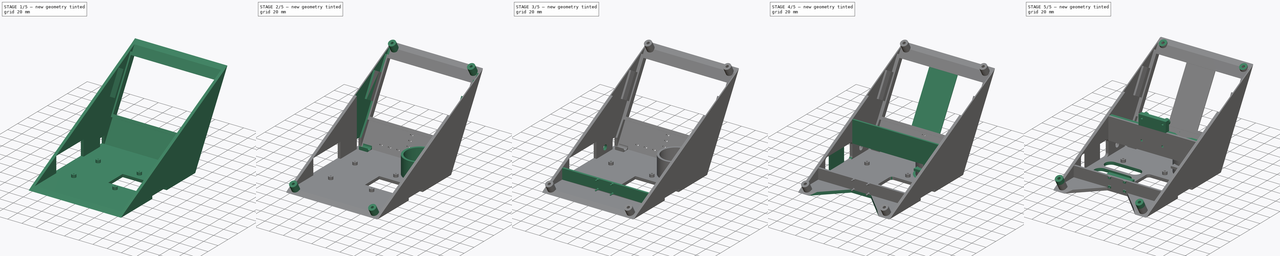
[diagram: build sequence overview — one tinted view per stage of 5, left to right]
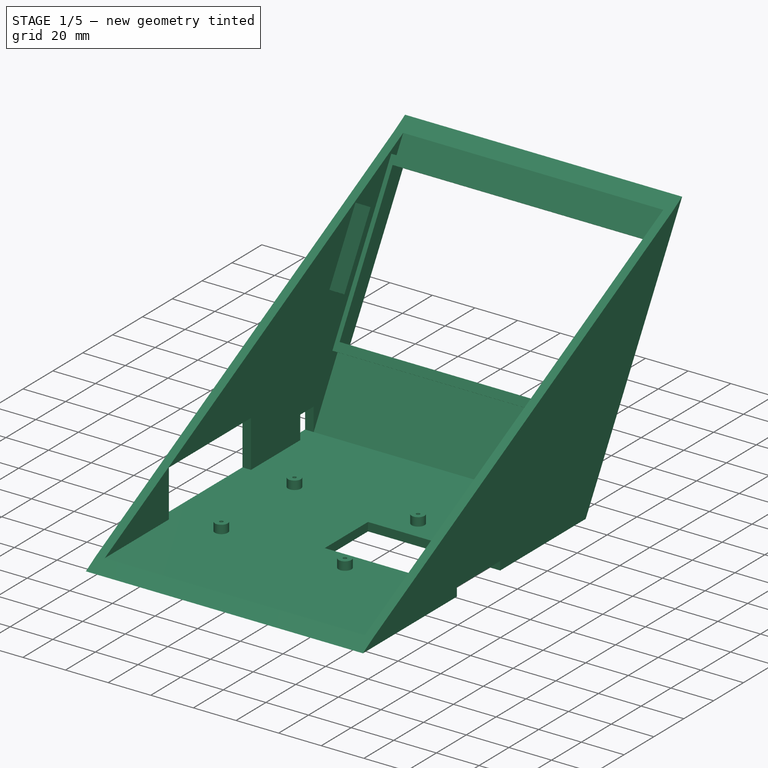
[diagram: stage 1 of 5 — iso view after this stage's code; geometry added in this stage tinted green]
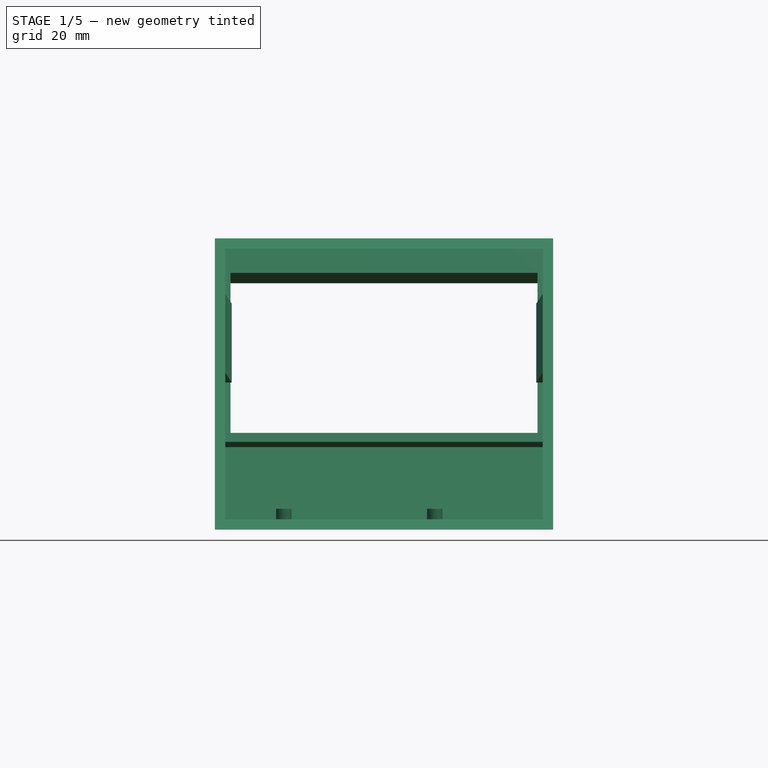
[diagram: stage 1 of 5 — front view after this stage's code; geometry added in this stage tinted green]
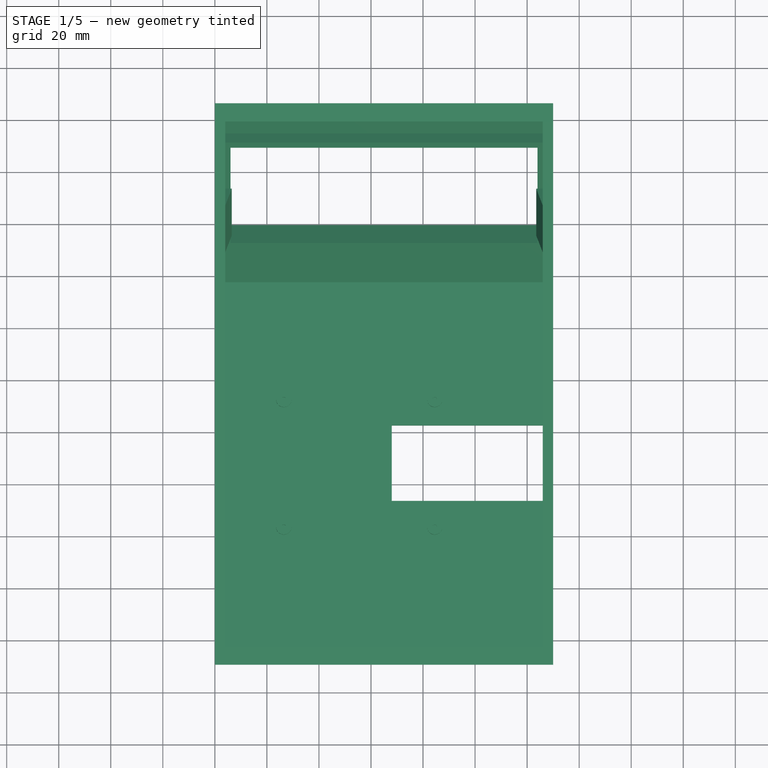
[diagram: stage 1 of 5 — top view after this stage's code; geometry added in this stage tinted green]
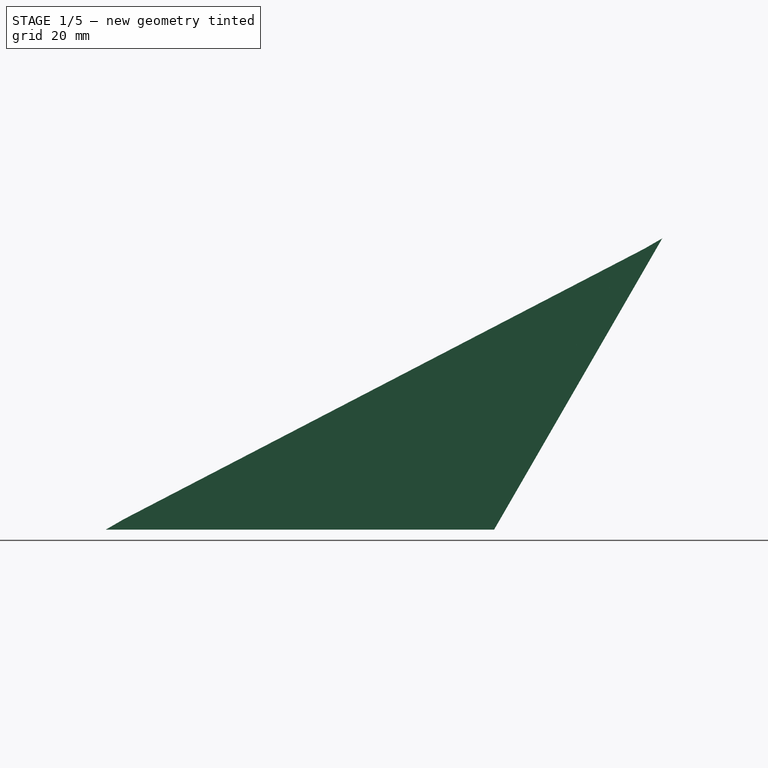
[diagram: stage 1 of 5 — right view after this stage's code; geometry added in this stage tinted green]
FCSTD DOCUMENT  (FreeCAD 0.17R8469 (Git))
Label: DAPrototypeV5
License: All rights reserved
LicenseURL: http://en.wikipedia.org/wiki/All_rights_reserved
objects: Sketcher::SketchObject×57, PartDesign::Pocket×29, PartDesign::Pad×28, PartDesign::Fillet×6
note: 177 computed .brp shape members not serialized (recipe doc carries the construction recipe); baked Part::Feature solids carry a one-line shape summary decoded from their .brp

FEATURE [Sketcher::SketchObject] Sketch
  MapMode = 5
  Placement = pos=(0,0,0) rot=(0.57735,0.57735,0.57735;2.0944rad)
  sketch-geometry (8):
    g0: LineSegment StartX=0 StartY=0 StartZ=0 EndX=64.6188 EndY=111.923 EndZ=0
    g1: LineSegment StartX=57.6906 StartY=107.923 StartZ=0 EndX=-2.3094 EndY=4 EndZ=0
    g2: LineSegment StartX=0 StartY=0 StartZ=0 EndX=-149.238 EndY=0 EndZ=0
    g3: LineSegment StartX=-2.3094 StartY=4 StartZ=0 EndX=-142.309 EndY=4 EndZ=0
    g4: LineSegment StartX=-149.238 StartY=0 StartZ=0 EndX=-142.309 EndY=4 EndZ=0
    g5: LineSegment StartX=57.6906 StartY=107.923 StartZ=0 EndX=64.6188 EndY=111.923 EndZ=0
    g6: LineSegment [constr] StartX=-2.3094 StartY=4 StartZ=0 EndX=-2.3094 EndY=0 EndZ=0
    g7: LineSegment [constr] StartX=-2.3094 StartY=4 StartZ=0 EndX=1.1547 EndY=2 EndZ=0
  constraints (23):
    c: Coincident(g0,g-1)
    c: Coincident(g2,g-1)
    c: Horizontal(g2)
    c: Horizontal(g3)
    c: Coincident(g4,g2)
    c: Coincident(g5,g1)
    c: Coincident(g5,g0)
    c: Parallel(g0,g1)
    c: Angle(g2,g4) = 0.523599
    c: Coincident(g3,g4)
    c: Coincident(g3,g1)
    c: Angle(g0,g2) = 2.0944
    c: PointOnObject(g6,g2)
    c: Vertical(g6)
    c: Distance(g6) = 4
    c: PointOnObject(g7,g0)
    c: Perpendicular(g0,g7)
    c: Parallel(g4,g5)
    c: Distance(g3) = 140
    c: Distance(g1) = 120
    c: Coincident(g7,g1)
    c: Coincident(g6,g1)
    c: Equal(g7,g6)
FEATURE [PartDesign::Pad] Pad
  Length = 130
  Length2 = 100
  Placement = pos=(0,0,0) rot=(0.57735,0.57735,0.57735;2.0944rad)
  Profile = -> Sketch
  Type = 0
FEATURE [Sketcher::SketchObject] Sketch001
  ExternalGeometry = -> [Pad]
  MapMode = 5
  Placement = pos=(0,-3.4641,2) rot=(0.447214,0.447214,-0.774597;1.82348rad)
  Support = -> [Pad]
  sketch-geometry (7):
    g0: LineSegment StartX=-109.309 StartY=124 StartZ=0 EndX=-38.3094 EndY=124 EndZ=0
    g1: LineSegment StartX=-38.3094 StartY=124 StartZ=0 EndX=-38.3094 EndY=6 EndZ=0
    g2: LineSegment StartX=-38.3094 StartY=6 StartZ=0 EndX=-109.309 EndY=6 EndZ=0
    g3: LineSegment StartX=-109.309 StartY=6 StartZ=0 EndX=-109.309 EndY=124 EndZ=0
    g4: LineSegment [constr] StartX=-109.309 StartY=124 StartZ=0 EndX=-109.309 EndY=130 EndZ=0
    g5: LineSegment [constr] StartX=-38.3094 StartY=6 StartZ=0 EndX=-38.3094 EndY=0 EndZ=0
    g6: LineSegment [constr] StartX=-38.3094 StartY=124 StartZ=0 EndX=-2.3094 EndY=124 EndZ=0
  constraints (21):
    c: Coincident(g0,g1)
    c: Coincident(g1,g2)
    c: Coincident(g2,g3)
    c: Coincident(g3,g0)
    c: Horizontal(g0)
    c: Horizontal(g2)
    c: Vertical(g1)
    c: Vertical(g3)
    c: Coincident(g4,g0)
    c: PointOnObject(g4,g-3)
    c: Vertical(g4)
    c: Coincident(g5,g1)
    c: PointOnObject(g5,g-6)
    c: Coincident(g6,g0)
    c: PointOnObject(g6,g-4)
    c: Horizontal(g6)
    c: Equal(g5,g4)
    c: Distance(g1) = 118
    c: Distance(g0) = 71
    c: Vertical(g5)
    c: Distance(g6) = 36
FEATURE [PartDesign::Pocket] Pocket
  Length = 5
  Placement = pos=(0,0,0) rot=(0.57735,0.57735,0.57735;2.0944rad)
  Profile = -> Sketch001
  Type = 2
FEATURE [Sketcher::SketchObject] Sketch002
  ExternalGeometry = -> [Pocket]
  MapMode = 5
  Placement = pos=(0,0,4) rot=(0,0,-1;1.5708rad)
  Support = -> [Pocket]
  sketch-geometry (14):
    g0: LineSegment [constr] StartX=47.3094 StartY=84.5 StartZ=0 EndX=96.3094 EndY=84.5 EndZ=0
    g1: LineSegment [constr] StartX=96.3094 StartY=84.5 StartZ=0 EndX=96.3094 EndY=26.5 EndZ=0
    g2: LineSegment [constr] StartX=96.3094 StartY=26.5 StartZ=0 EndX=47.3094 EndY=26.5 EndZ=0
    g3: LineSegment [constr] StartX=47.3094 StartY=26.5 StartZ=0 EndX=47.3094 EndY=84.5 EndZ=0
    g4: LineSegment [constr] StartX=47.3094 StartY=84.5 StartZ=0 EndX=2.3094 EndY=84.5 EndZ=0
    g5: LineSegment [constr] StartX=96.3094 StartY=26.5 StartZ=0 EndX=96.3094 EndY=0 EndZ=0
    g6: Circle CenterX=47.3094 CenterY=84.5 CenterZ=0 NormalX=0 NormalY=0 NormalZ=1 Radius=0.85
    g7: Circle CenterX=96.3094 CenterY=84.5 CenterZ=0 NormalX=0 NormalY=0 NormalZ=1 Radius=0.85
    g8: Circle CenterX=96.3094 CenterY=26.5 CenterZ=0 NormalX=0 NormalY=0 NormalZ=1 Radius=0.85
    g9: Circle CenterX=47.3094 CenterY=26.5 CenterZ=0 NormalX=0 NormalY=0 NormalZ=1 Radius=0.85
    g10: Circle CenterX=47.3094 CenterY=84.5 CenterZ=0 NormalX=0 NormalY=0 NormalZ=1 Radius=3
    g11: Circle CenterX=96.3094 CenterY=84.5 CenterZ=0 NormalX=0 NormalY=0 NormalZ=1 Radius=3
    g12: Circle CenterX=96.3094 CenterY=26.5 CenterZ=0 NormalX=0 NormalY=0 NormalZ=1 Radius=3
    g13: Circle CenterX=47.3094 CenterY=26.5 CenterZ=0 NormalX=0 NormalY=0 NormalZ=1 Radius=3
  constraints (34):
    c: Coincident(g0,g1)
    c: Coincident(g1,g2)
    c: Coincident(g2,g3)
    c: Coincident(g3,g0)
    c: Horizontal(g0)
    c: Horizontal(g2)
    c: Vertical(g1)
    c: Vertical(g3)
    c: Coincident(g4,g0)
    c: PointOnObject(g4,g-5)
    c: Perpendicular(g3,g4)
    c: Distance(g4) = 45
    c: Distance(g3) = 58
    c: Distance(g2) = 49
    c: Coincident(g5,g1)
    c: PointOnObject(g5,g-4)
    c: Perpendicular(g-4,g5)
    c: Distance(g5) = 26.5
    c: Equal(g6,g7)
    c: Equal(g7,g8)
    c: Equal(g8,g9)
    c: Radius(g6) = 0.85
    c: Coincident(g0,g6)
    c: Coincident(g0,g7)
    c: Coincident(g8,g1)
    c: Coincident(g9,g2)
    c: Equal(g10,g11)
    c: Equal(g11,g12)
    c: Equal(g12,g13)
    c: Radius(g10) = 3
    c: Coincident(g10,g0)
    c: Coincident(g0,g11)
    c: Coincident(g1,g12)
    c: Coincident(g2,g13)
FEATURE [PartDesign::Pad] Pad001
  Length = 4
  Length2 = 100
  Placement = pos=(0,0,0) rot=(0.57735,0.57735,0.57735;2.0944rad)
  Profile = -> Sketch002
  Type = 0
FEATURE [Sketcher::SketchObject] Sketch003
  ExternalGeometry = -> [Pad001]
  MapMode = 5
  Placement = pos=(0,-3.4641,2) rot=(0.447214,0.447214,-0.774597;1.82348rad)
  Support = -> [Pad001]
  sketch-geometry (12):
    g0: LineSegment StartX=-113.309 StartY=128 StartZ=0 EndX=-34.3094 EndY=128 EndZ=0
    g1: LineSegment StartX=-34.3094 StartY=128 StartZ=0 EndX=-34.3094 EndY=2 EndZ=0
    g2: LineSegment StartX=-34.3094 StartY=2 StartZ=0 EndX=-113.309 EndY=2 EndZ=0
    g3: LineSegment StartX=-113.309 StartY=2 StartZ=0 EndX=-113.309 EndY=128 EndZ=0
    g4: LineSegment [constr] StartX=-109.309 StartY=124 StartZ=0 EndX=-113.309 EndY=124 EndZ=0
    g5: LineSegment [constr] StartX=-38.3094 StartY=6 StartZ=0 EndX=-34.3094 EndY=6 EndZ=0
    g6: LineSegment [constr] StartX=-109.309 StartY=6 StartZ=0 EndX=-109.309 EndY=2 EndZ=0
    g7: LineSegment [constr] StartX=-38.3094 StartY=124 StartZ=0 EndX=-38.3094 EndY=128 EndZ=0
    g8: LineSegment StartX=-109.309 StartY=6 StartZ=0 EndX=-38.3094 EndY=6 EndZ=0
    g9: LineSegment StartX=-38.3094 StartY=6 StartZ=0 EndX=-38.3094 EndY=124 EndZ=0
    g10: LineSegment StartX=-38.3094 StartY=124 StartZ=0 EndX=-109.309 EndY=124 EndZ=0
    g11: LineSegment StartX=-109.309 StartY=124 StartZ=0 EndX=-109.309 EndY=6 EndZ=0
  constraints (34):
    c: Coincident(g0,g1)
    c: Coincident(g1,g2)
    c: Coincident(g2,g3)
    c: Coincident(g3,g0)
    c: Horizontal(g0)
    c: Horizontal(g2)
    c: Vertical(g1)
    c: Vertical(g3)
    c: Coincident(g4,g-5)
    c: PointOnObject(g4,g3)
    c: PointOnObject(g5,g1)
    c: Coincident(g6,g-6)
    c: PointOnObject(g6,g2)
    c: PointOnObject(g7,g0)
    c: Equal(g4,g6)
    c: Equal(g6,g5)
    c: Equal(g5,g7)
    c: Perpendicular(g3,g4)
    c: Perpendicular(g0,g7)
    c: Perpendicular(g1,g5)
    c: Perpendicular(g2,g6)
    c: Coincident(g5,g-6)
    c: Coincident(g7,g-4)
    c: Distance(g4) = 4
    c: Coincident(g8,g9)
    c: Coincident(g9,g10)
    c: Coincident(g10,g11)
    c: Coincident(g11,g8)
    c: Horizontal(g8)
    c: Horizontal(g10)
    c: Vertical(g9)
    c: Vertical(g11)
    c: Coincident(g9,g7)
    c: Coincident(g8,g6)
FEATURE [PartDesign::Pad] Pad002
  Length = 4
  Length2 = 100
  Placement = pos=(0,0,0) rot=(0.57735,0.57735,0.57735;2.0944rad)
  Profile = -> Sketch003
  Type = 0
FEATURE [Sketcher::SketchObject] Sketch004
  ExternalGeometry = -> [Pad002]
  MapMode = 5
  Placement = pos=(0,0,4) rot=(0,0,-1;1.5708rad)
  Support = -> [Pad002]
  sketch-geometry (10):
    g0: LineSegment StartX=57.3094 StartY=68 StartZ=0 EndX=86.3094 EndY=68 EndZ=0
    g1: LineSegment StartX=86.3094 StartY=68 StartZ=0 EndX=86.3094 EndY=130 EndZ=0
    g2: LineSegment StartX=86.3094 StartY=130 StartZ=0 EndX=57.3094 EndY=130 EndZ=0
    g3: LineSegment StartX=57.3094 StartY=130 StartZ=0 EndX=57.3094 EndY=68 EndZ=0
    g4: LineSegment [constr] StartX=47.3094 StartY=83 StartZ=0 EndX=96.3094 EndY=83 EndZ=0
    g5: LineSegment [constr] StartX=96.3094 StartY=83 StartZ=0 EndX=96.3094 EndY=68 EndZ=0
    g6: LineSegment [constr] StartX=96.3094 StartY=68 StartZ=0 EndX=47.3094 EndY=68 EndZ=0
    g7: LineSegment [constr] StartX=47.3094 StartY=68 StartZ=0 EndX=47.3094 EndY=83 EndZ=0
    g8: LineSegment [constr] StartX=57.3094 StartY=83 StartZ=0 EndX=47.3094 EndY=83 EndZ=0
    g9: LineSegment [constr] StartX=86.3094 StartY=83 StartZ=0 EndX=96.3094 EndY=83 EndZ=0
  constraints (29):
    c: Coincident(g0,g1)
    c: Coincident(g1,g2)
    c: Coincident(g2,g3)
    c: Coincident(g3,g0)
    c: Horizontal(g0)
    c: Horizontal(g2)
    c: Vertical(g1)
    c: Vertical(g3)
    c: PointOnObject(g2,g-3)
    c: Coincident(g4,g5)
    c: Coincident(g5,g6)
    c: Coincident(g6,g7)
    c: Coincident(g7,g4)
    c: Horizontal(g4)
    c: Horizontal(g6)
    c: Vertical(g5)
    c: Vertical(g7)
    c: Coincident(g4,g-5)
    c: Coincident(g4,g-4)
    c: Distance(g5) = 15
    c: PointOnObject(g0,g6)
    c: PointOnObject(g8,g3)
    c: Coincident(g8,g4)
    c: Coincident(g9,g4)
    c: PointOnObject(g9,g1)
    c: Equal(g8,g9)
    c: Distance(g8) = 10
    c: Perpendicular(g3,g8)
    c: Perpendicular(g1,g9)
FEATURE [PartDesign::Pocket] Pocket001
  Length = 5
  Placement = pos=(0,0,0) rot=(0.57735,0.57735,0.57735;2.0944rad)
  Profile = -> Sketch004
  Type = 2
FEATURE [Sketcher::SketchObject] Sketch005
  ExternalGeometry = -> [Pocket001]
  MapMode = 5
  Placement = pos=(0,-6.9282,4) rot=(0.447214,0.447214,-0.774597;1.82348rad)
  Support = -> [Pocket001]
  sketch-geometry (12):
    g0: LineSegment StartX=-91.3094 StartY=128 StartZ=0 EndX=-56.3094 EndY=128 EndZ=0
    g1: LineSegment StartX=-56.3094 StartY=128 StartZ=0 EndX=-56.3094 EndY=126 EndZ=0
    g2: LineSegment StartX=-56.3094 StartY=126 StartZ=0 EndX=-91.3094 EndY=126 EndZ=0
    g3: LineSegment StartX=-91.3094 StartY=126 StartZ=0 EndX=-91.3094 EndY=128 EndZ=0
    g4: LineSegment StartX=-91.3094 StartY=2 StartZ=0 EndX=-56.3094 EndY=2 EndZ=0
    g5: LineSegment StartX=-56.3094 StartY=2 StartZ=0 EndX=-56.3094 EndY=4 EndZ=0
    g6: LineSegment StartX=-56.3094 StartY=4 StartZ=0 EndX=-91.3094 EndY=4 EndZ=0
    g7: LineSegment StartX=-91.3094 StartY=4 StartZ=0 EndX=-91.3094 EndY=2 EndZ=0
    g8: LineSegment [constr] StartX=-113.309 StartY=126 StartZ=0 EndX=-91.3094 EndY=126 EndZ=0
    g9: LineSegment [constr] StartX=-56.3094 StartY=126 StartZ=0 EndX=-34.3094 EndY=126 EndZ=0
    g10: LineSegment [constr] StartX=-56.3094 StartY=4 StartZ=0 EndX=-34.3094 EndY=4 EndZ=0
    g11: LineSegment [constr] StartX=-91.3094 StartY=4 StartZ=0 EndX=-113.309 EndY=4 EndZ=0
  constraints (36):
    c: Coincident(g0,g1)
    c: Coincident(g1,g2)
    c: Coincident(g2,g3)
    c: Coincident(g3,g0)
    c: Horizontal(g0)
    c: Horizontal(g2)
    c: Vertical(g1)
    c: Vertical(g3)
    c: PointOnObject(g0,g-8)
    c: Coincident(g4,g5)
    c: Coincident(g5,g6)
    c: Coincident(g6,g7)
    c: Coincident(g7,g4)
    c: Horizontal(g4)
    c: Horizontal(g6)
    c: Vertical(g5)
    c: Vertical(g7)
    c: PointOnObject(g4,g-7)
    c: Equal(g6,g2)
    c: Equal(g1,g5)
    c: PointOnObject(g8,g-10)
    c: Coincident(g8,g2)
    c: Horizontal(g8)
    c: Coincident(g9,g1)
    c: PointOnObject(g9,g-9)
    c: Horizontal(g9)
    c: Coincident(g10,g5)
    c: PointOnObject(g10,g-9)
    c: Horizontal(g10)
    c: Coincident(g11,g6)
    c: Horizontal(g11)
    c: Equal(g11,g10)
    c: Equal(g9,g8)
    c: Distance(g1) = 2
    c: Distance(g2) = 35
    c: PointOnObject(g11,g-10)
FEATURE [PartDesign::Pad] Pad003
  Length = 15
  Length2 = 100
  Placement = pos=(0,0,0) rot=(0.57735,0.57735,0.57735;2.0944rad)
  Profile = -> Sketch005
  Type = 0
FEATURE [Sketcher::SketchObject] Sketch006
  ExternalGeometry = -> [Pad003]
  MapMode = 5
  Placement = pos=(0,45.6547,79.0763) rot=(-0.250563,-0.250563,-0.935113;1.63783rad)
  Support = -> [Pad003]
  sketch-geometry (3):
    g0: LineSegment StartX=23 StartY=126 StartZ=0 EndX=15.5 EndY=126 EndZ=0
    g1: LineSegment StartX=15.5 StartY=126 StartZ=0 EndX=15.5 EndY=123.5 EndZ=0
    g2: LineSegment StartX=23 StartY=126 StartZ=0 EndX=15.5 EndY=123.5 EndZ=0
  constraints (8):
    c: Coincident(g0,g1)
    c: Horizontal(g0)
    c: Vertical(g1)
    c: Coincident(g0,g-3)
    c: Distance(g1) = 2.5
    c: Coincident(g2,g0)
    c: Coincident(g2,g1)
    c: DistanceX(g0,g0) = 7.5
FEATURE [PartDesign::Pad] Pad004
  Length = 35
  Length2 = 100
  Placement = pos=(0,0,0) rot=(0.57735,0.57735,0.57735;2.0944rad)
  Profile = -> Sketch006
  Reversed = true
  Type = 0
FEATURE [Sketcher::SketchObject] Sketch007
  ExternalGeometry = -> [Pad004]
  MapMode = 5
  Placement = pos=(0,45.6547,79.0763) rot=(-0.250563,-0.250563,-0.935113;1.63783rad)
  Support = -> [Pad004]
  sketch-geometry (3):
    g0: LineSegment StartX=23 StartY=4 StartZ=0 EndX=15.5 EndY=4 EndZ=0
    g1: LineSegment StartX=15.5 StartY=4 StartZ=0 EndX=15.5 EndY=6.5 EndZ=0
    g2: LineSegment StartX=15.5 StartY=6.5 StartZ=0 EndX=23 EndY=4 EndZ=0
  constraints (8):
    c: Coincident(g0,g1)
    c: Horizontal(g0)
    c: Vertical(g1)
    c: Coincident(g0,g-3)
    c: Distance(g1) = 2.5
    c: Coincident(g2,g1)
    c: Coincident(g2,g0)
    c: DistanceX(g0,g0) = 7.5
FEATURE [PartDesign::Pad] Pad005
  Length = 35
  Length2 = 100
  Placement = pos=(0,0,0) rot=(0.57735,0.57735,0.57735;2.0944rad)
  Profile = -> Sketch007
  Reversed = true
  Type = 0
FEATURE [Sketcher::SketchObject] Sketch008
  ExternalGeometry = -> [Pad005]
  MapMode = 5
  Placement = pos=(0,0,0) rot=(0.57735,0.57735,-0.57735;4.18879rad)
  Support = -> [Pad005]
  sketch-geometry (3):
    g0: LineSegment StartX=-2.3094 StartY=-4 StartZ=0 EndX=57.6906 EndY=-107.923 EndZ=0
    g1: LineSegment StartX=57.6906 StartY=-107.923 StartZ=0 EndX=-142.309 EndY=-4 EndZ=0
    g2: LineSegment StartX=-142.309 StartY=-4 StartZ=0 EndX=-2.3094 EndY=-4 EndZ=0
  constraints (7):
    c: Coincident(g0,g-4)
    c: Coincident(g0,g-4)
    c: Coincident(g1,g0)
    c: Coincident(g2,g1)
    c: Coincident(g2,g0)
    c: Horizontal(g2)
    c: Coincident(g1,g-3)
FEATURE [PartDesign::Pad] Pad006
  Length = 4
  Length2 = 100
  Placement = pos=(0,0,0) rot=(0.57735,0.57735,0.57735;2.0944rad)
  Profile = -> Sketch008
  Reversed = true
  Type = 0
FEATURE [Sketcher::SketchObject] Sketch009
  ExternalGeometry = -> [Pad006]
  MapMode = 5
  Placement = pos=(130,0,0) rot=(0.57735,0.57735,0.57735;2.0944rad)
  Support = -> [Pad006]
  sketch-geometry (3):
    g0: LineSegment StartX=-142.309 StartY=4 StartZ=0 EndX=-2.3094 EndY=4 EndZ=0
    g1: LineSegment StartX=-2.3094 StartY=4 StartZ=0 EndX=57.6906 EndY=107.923 EndZ=0
    g2: LineSegment StartX=57.6906 StartY=107.923 StartZ=0 EndX=-142.309 EndY=4 EndZ=0
  constraints (6):
    c: Coincident(g0,g-3)
    c: Coincident(g0,g-4)
    c: Coincident(g1,g0)
    c: Coincident(g1,g-4)
    c: Coincident(g2,g1)
    c: Coincident(g2,g0)
FEATURE [PartDesign::Pad] Pad007
  Length = 4
  Length2 = 100
  Placement = pos=(0,0,0) rot=(0.57735,0.57735,0.57735;2.0944rad)
  Profile = -> Sketch009
  Reversed = true
  Type = 0
FEATURE [Sketcher::SketchObject] Sketch010
  ExternalGeometry = -> [Pad007]
  MapMode = 5
  Placement = pos=(0,0,4) rot=(0,0,-1;1.5708rad)
  Support = -> [Pad007]
  sketch-geometry (6):
    g0: LineSegment [constr] StartX=44.3094 StartY=26.5 StartZ=0 EndX=44.3094 EndY=0 EndZ=0
    g1: LineSegment [constr] StartX=99.3094 StartY=26.5 StartZ=0 EndX=99.3094 EndY=0 EndZ=0
    g2: LineSegment StartX=44.3094 StartY=0 StartZ=0 EndX=99.3094 EndY=0 EndZ=0
    g3: LineSegment StartX=99.3094 StartY=0 StartZ=0 EndX=99.3094 EndY=16.5 EndZ=0
    g4: LineSegment StartX=99.3094 StartY=16.5 StartZ=0 EndX=44.3094 EndY=16.5 EndZ=0
    g5: LineSegment StartX=44.3094 StartY=16.5 StartZ=0 EndX=44.3094 EndY=0 EndZ=0
  constraints (19):
    c: PointOnObject(g0,g-5)
    c: PointOnObject(g1,g-4)
    c: Tangent(g0,g-5)
    c: Tangent(g1,g-4)
    c: Vertical(g1)
    c: Vertical(g0)
    c: PointOnObject(g0,g-3)
    c: PointOnObject(g1,g-3)
    c: Coincident(g2,g3)
    c: Coincident(g3,g4)
    c: Coincident(g4,g5)
    c: Coincident(g5,g2)
    c: Horizontal(g2)
    c: Horizontal(g4)
    c: Vertical(g3)
    c: Vertical(g5)
    c: Coincident(g2,g0)
    c: PointOnObject(g3,g1)
    c: DistanceY(g4,g0) = 10
FEATURE [PartDesign::Pocket] Pocket002
  Length = 22
  Placement = pos=(0,0,0) rot=(0.57735,0.57735,0.57735;2.0944rad)
  Profile = -> Sketch010
  Reversed = true
  Type = 0
FEATURE [Sketcher::SketchObject] Sketch011
  ExternalGeometry = -> [Pocket002]
  MapMode = 5
  Placement = pos=(0,0,0) rot=(0.57735,0.57735,-0.57735;4.18879rad)
  Support = -> [Pocket002]
  sketch-geometry (4):
    g0: LineSegment StartX=-2.3094 StartY=-4 StartZ=0 EndX=-11.3094 EndY=-4 EndZ=0
    g1: LineSegment StartX=-11.3094 StartY=-4 StartZ=0 EndX=-11.3094 EndY=-14.8 EndZ=0
    g2: LineSegment StartX=-11.3094 StartY=-14.8 StartZ=0 EndX=-2.3094 EndY=-14.8 EndZ=0
    g3: LineSegment StartX=-2.3094 StartY=-14.8 StartZ=0 EndX=-2.3094 EndY=-4 EndZ=0
  constraints (11):
    c: Coincident(g0,g1)
    c: Coincident(g1,g2)
    c: Coincident(g2,g3)
    c: Coincident(g3,g0)
    c: Horizontal(g0)
    c: Horizontal(g2)
    c: Vertical(g1)
    c: Vertical(g3)
    c: Coincident(g0,g-4)
    c: Distance(g1) = 10.8
    c: Distance(g2) = 9
FEATURE [PartDesign::Pocket] Pocket003
  Length = 5
  Placement = pos=(0,0,0) rot=(0.57735,0.57735,0.57735;2.0944rad)
  Profile = -> Sketch011
  Type = 2
FEATURE [Sketcher::SketchObject] Sketch012
  ExternalGeometry = -> [Pocket003]
  MapMode = 5
  Placement = pos=(0,0,0) rot=(0.654654,0.654654,0.377964;3.86433rad)
  Support = -> [Pocket003]
  sketch-geometry (63):
    g0: LineSegment [constr] StartX=0 StartY=0 StartZ=0 EndX=10.3094 EndY=0 EndZ=0
    g1: LineSegment [constr] StartX=10.3094 StartY=0 StartZ=0 EndX=10.3094 EndY=29 EndZ=0
    g2: LineSegment [constr] StartX=10.3094 StartY=29 StartZ=0 EndX=0 EndY=29 EndZ=0
    g3: LineSegment [constr] StartX=0 StartY=29 StartZ=0 EndX=0 EndY=0 EndZ=0
    g4: LineSegment [constr] StartX=0 StartY=29 StartZ=0 EndX=10.3094 EndY=29 EndZ=0
    g5: LineSegment [constr] StartX=10.3094 StartY=29 StartZ=0 EndX=10.3094 EndY=41 EndZ=0
    g6: LineSegment [constr] StartX=10.3094 StartY=41 StartZ=0 EndX=0 EndY=41 EndZ=0
    g7: LineSegment [constr] StartX=0 StartY=41 StartZ=0 EndX=0 EndY=29 EndZ=0
    g8: LineSegment [constr] StartX=0 StartY=41 StartZ=0 EndX=10.3094 EndY=41 EndZ=0
    g9: LineSegment [constr] StartX=10.3094 StartY=41 StartZ=0 EndX=10.3094 EndY=53 EndZ=0
    g10: LineSegment [constr] StartX=10.3094 StartY=53 StartZ=0 EndX=0 EndY=53 EndZ=0
    g11: LineSegment [constr] StartX=0 StartY=53 StartZ=0 EndX=0 EndY=41 EndZ=0
    g12: LineSegment [constr] StartX=0 StartY=53 StartZ=0 EndX=10.3094 EndY=53 EndZ=0
    g13: LineSegment [constr] StartX=10.3094 StartY=53 StartZ=0 EndX=10.3094 EndY=65 EndZ=0
    g14: LineSegment [constr] StartX=10.3094 StartY=65 StartZ=0 EndX=0 EndY=65 EndZ=0
    g15: LineSegment [constr] StartX=0 StartY=65 StartZ=0 EndX=0 EndY=53 EndZ=0
    g16: LineSegment [constr] StartX=0 StartY=65 StartZ=0 EndX=10.3094 EndY=65 EndZ=0
    g17: LineSegment [constr] StartX=10.3094 StartY=65 StartZ=0 EndX=10.3094 EndY=77 EndZ=0
    g18: LineSegment [constr] StartX=10.3094 StartY=77 StartZ=0 EndX=0 EndY=77 EndZ=0
    g19: LineSegment [constr] StartX=0 StartY=77 StartZ=0 EndX=0 EndY=65 EndZ=0
    g20: LineSegment [constr] StartX=0 StartY=77 StartZ=0 EndX=10.3094 EndY=77 EndZ=0
    g21: LineSegment [constr] StartX=10.3094 StartY=77 StartZ=0 EndX=10.3094 EndY=89 EndZ=0
    g22: LineSegment [constr] StartX=10.3094 StartY=89 StartZ=0 EndX=0 EndY=89 EndZ=0
    g23: LineSegment [constr] StartX=0 StartY=89 StartZ=0 EndX=0 EndY=77 EndZ=0
    g24: LineSegment [constr] StartX=0 StartY=89 StartZ=0 EndX=10.3094 EndY=89 EndZ=0
    g25: LineSegment [constr] StartX=10.3094 StartY=89 StartZ=0 EndX=10.3094 EndY=101 EndZ=0
    g26: LineSegment [constr] StartX=10.3094 StartY=101 StartZ=0 EndX=0 EndY=101 EndZ=0
    g27: LineSegment [constr] StartX=0 StartY=101 StartZ=0 EndX=0 EndY=89 EndZ=0
    g28: LineSegment [constr] StartX=0 StartY=101 StartZ=0 EndX=10.3094 EndY=101 EndZ=0
    g29: LineSegment [constr] StartX=10.3094 StartY=101 StartZ=0 EndX=10.3094 EndY=130 EndZ=0
    g30: LineSegment [constr] StartX=10.3094 StartY=130 StartZ=0 EndX=0 EndY=130 EndZ=0
    g31: LineSegment [constr] StartX=0 StartY=130 StartZ=0 EndX=0 EndY=101 EndZ=0
    g32: LineSegment [constr] StartX=10.3094 StartY=65 StartZ=0 EndX=17.3094 EndY=65 EndZ=0
    g33: LineSegment [constr] StartX=17.3094 StartY=65 StartZ=0 EndX=17.3094 EndY=53 EndZ=0
    g34: LineSegment [constr] StartX=17.3094 StartY=53 StartZ=0 EndX=10.3094 EndY=53 EndZ=0
    g35: LineSegment [constr] StartX=10.3094 StartY=53 StartZ=0 EndX=10.3094 EndY=65 EndZ=0
    g36: LineSegment [constr] StartX=17.3094 StartY=65 StartZ=0 EndX=24.3094 EndY=65 EndZ=0
    g37: LineSegment [constr] StartX=24.3094 StartY=65 StartZ=0 EndX=24.3094 EndY=53 EndZ=0
    g38: LineSegment [constr] StartX=24.3094 StartY=53 StartZ=0 EndX=17.3094 EndY=53 EndZ=0
    g39: LineSegment [constr] StartX=17.3094 StartY=53 StartZ=0 EndX=17.3094 EndY=65 EndZ=0
    g40: LineSegment [constr] StartX=24.3094 StartY=65 StartZ=0 EndX=31.3094 EndY=65 EndZ=0
    g41: LineSegment [constr] StartX=31.3094 StartY=65 StartZ=0 EndX=31.3094 EndY=53 EndZ=0
    g42: LineSegment [constr] StartX=31.3094 StartY=53 StartZ=0 EndX=24.3094 EndY=53 EndZ=0
    g43: LineSegment [constr] StartX=24.3094 StartY=53 StartZ=0 EndX=24.3094 EndY=65 EndZ=0
    g44: LineSegment [constr] StartX=31.3094 StartY=65 StartZ=0 EndX=38.3094 EndY=65 EndZ=0
    g45: LineSegment [constr] StartX=38.3094 StartY=65 StartZ=0 EndX=38.3094 EndY=53 EndZ=0
    g46: LineSegment [constr] StartX=38.3094 StartY=53 StartZ=0 EndX=31.3094 EndY=53 EndZ=0
    g47: LineSegment [constr] StartX=31.3094 StartY=53 StartZ=0 EndX=31.3094 EndY=65 EndZ=0
    g48: Circle CenterX=10.3094 CenterY=101 CenterZ=0 NormalX=0 NormalY=0 NormalZ=1 Radius=2.9
    g49: Circle CenterX=10.3094 CenterY=89 CenterZ=0 NormalX=0 NormalY=0 NormalZ=1 Radius=2.9
    g50: Circle CenterX=10.3094 CenterY=77 CenterZ=0 NormalX=0 NormalY=0 NormalZ=1 Radius=2.9
    g51: Circle CenterX=10.3094 CenterY=65 CenterZ=0 NormalX=0 NormalY=0 NormalZ=1 Radius=2.9
    g52: Circle CenterX=17.3094 CenterY=65 CenterZ=0 NormalX=0 NormalY=0 NormalZ=1 Radius=2.9
    g53: Circle CenterX=10.3094 CenterY=53 CenterZ=0 NormalX=0 NormalY=0 NormalZ=1 Radius=2.9
    g54: Circle CenterX=10.3094 CenterY=41 CenterZ=0 NormalX=0 NormalY=0 NormalZ=1 Radius=2.9
    g55: Circle CenterX=10.3094 CenterY=29 CenterZ=0 NormalX=0 NormalY=0 NormalZ=1 Radius=2.9
    g56: Circle CenterX=24.3094 CenterY=65 CenterZ=0 NormalX=0 NormalY=0 NormalZ=1 Radius=2.9
    g57: Circle CenterX=31.3094 CenterY=65 CenterZ=0 NormalX=0 NormalY=0 NormalZ=1 Radius=2.9
    g58: LineSegment [constr] StartX=38.3094 StartY=118 StartZ=0 EndX=30.3094 EndY=118 EndZ=0
    g59: LineSegment [constr] StartX=30.3094 StartY=118 StartZ=0 EndX=30.3094 EndY=130 EndZ=0
    g60: LineSegment [constr] StartX=30.3094 StartY=130 StartZ=0 EndX=38.3094 EndY=130 EndZ=0
    g61: LineSegment [constr] StartX=38.3094 StartY=130 StartZ=0 EndX=38.3094 EndY=118 EndZ=0
    g62: Circle CenterX=30.3094 CenterY=118 CenterZ=0 NormalX=0 NormalY=0 NormalZ=1 Radius=2.9
  constraints (166):
    c: Coincident(g0,g1)
    c: Coincident(g1,g2)
    c: Coincident(g2,g3)
    c: Coincident(g3,g0)
    c: Horizontal(g0)
    c: Horizontal(g2)
    c: Vertical(g1)
    c: Vertical(g3)
    c: Coincident(g0,g-1)
    c: Coincident(g4,g5)
    c: Coincident(g5,g6)
    c: Coincident(g6,g7)
    c: Coincident(g7,g4)
    c: Horizontal(g4)
    c: Horizontal(g6)
    c: Vertical(g5)
    c: Vertical(g7)
    c: Coincident(g4,g2)
    c: Coincident(g8,g9)
    c: Coincident(g9,g10)
    c: Coincident(g10,g11)
    c: Coincident(g11,g8)
    c: Horizontal(g8)
    c: Horizontal(g10)
    c: Vertical(g9)
    c: Vertical(g11)
    c: Coincident(g8,g6)
    c: Coincident(g12,g13)
    c: Coincident(g13,g14)
    c: Coincident(g14,g15)
    c: Coincident(g15,g12)
    c: Horizontal(g12)
    c: Horizontal(g14)
    c: Vertical(g13)
    c: Vertical(g15)
    c: Coincident(g12,g10)
    c: Coincident(g16,g17)
    c: Coincident(g17,g18)
    c: Coincident(g18,g19)
    c: Coincident(g19,g16)
    c: Horizontal(g16)
    c: Horizontal(g18)
    c: Vertical(g17)
    c: Vertical(g19)
    c: Coincident(g16,g14)
    c: Coincident(g20,g21)
    c: Coincident(g21,g22)
    c: Coincident(g22,g23)
    c: Coincident(g23,g20)
    c: Horizontal(g20)
    c: Horizontal(g22)
    c: Vertical(g21)
    c: Vertical(g23)
    c: Coincident(g20,g18)
    c: Coincident(g24,g25)
    c: Coincident(g25,g26)
    c: Coincident(g26,g27)
    c: Coincident(g27,g24)
    c: Horizontal(g24)
    c: Horizontal(g26)
    c: Vertical(g25)
    c: Vertical(g27)
    c: Coincident(g24,g22)
    c: Coincident(g28,g29)
    c: Coincident(g29,g30)
    c: Coincident(g30,g31)
    c: Coincident(g31,g28)
    c: Horizontal(g28)
    c: Horizontal(g30)
    c: Vertical(g29)
    c: Vertical(g31)
    c: Coincident(g28,g26)
    c: PointOnObject(g29,g-3)
    c: Equal(g25,g21)
    c: Equal(g21,g17)
    c: Equal(g17,g13)
    c: Equal(g13,g9)
    c: Equal(g9,g5)
    c: Coincident(g1,g4)
    c: Coincident(g5,g8)
    c: Coincident(g12,g9)
    c: Coincident(g16,g13)
    c: Coincident(g20,g17)
    c: Coincident(g24,g21)
    c: Coincident(g28,g25)
    c: Equal(g29,g1)
    c: Distance(g25) = 12
    c: Coincident(g32,g33)
    c: Coincident(g33,g34)
    c: Coincident(g34,g35)
    c: Coincident(g35,g32)
    c: Horizontal(g32)
    c: Horizontal(g34)
    c: Vertical(g33)
    c: Vertical(g35)
    c: Coincident(g32,g13)
    c: Coincident(g36,g37)
    c: Coincident(g37,g38)
    c: Coincident(g38,g39)
    c: Coincident(g39,g36)
    c: Horizontal(g36)
    c: Horizontal(g38)
    c: Vertical(g37)
    c: Vertical(g39)
    c: Coincident(g36,g32)
    c: Coincident(g40,g41)
    c: Coincident(g41,g42)
    c: Coincident(g42,g43)
    c: Coincident(g43,g40)
    c: Horizontal(g40)
    c: Horizontal(g42)
    c: Vertical(g41)
    c: Vertical(g43)
    c: Coincident(g40,g36)
    c: Coincident(g44,g45)
    c: Coincident(g45,g46)
    c: Coincident(g46,g47)
    c: Coincident(g47,g44)
    c: Horizontal(g44)
    c: Horizontal(g46)
    c: Vertical(g45)
    c: Vertical(g47)
    c: Coincident(g44,g40)
    c: PointOnObject(g45,g-5)
    c: Coincident(g46,g41)
    c: Coincident(g42,g37)
    c: Coincident(g38,g33)
    c: Equal(g34,g38)
    c: Equal(g38,g42)
    c: Equal(g42,g46)
    c: Distance(g44) = 7
    c: Coincident(g34,g9)
    c: Radius(g57) = 2.9
    c: Equal(g57,g56)
    c: Equal(g57,g55)
    c: Equal(g57,g54)
    c: Equal(g57,g53)
    c: Equal(g57,g52)
    c: Equal(g57,g51)
    c: Equal(g57,g50)
    c: Equal(g57,g49)
    c: Equal(g57,g48)
    c: Coincident(g48,g25)
    c: Coincident(g49,g21)
    c: Coincident(g50,g17)
    c: Coincident(g51,g13)
    c: Coincident(g52,g32)
    c: Coincident(g53,g9)
    c: Coincident(g54,g5)
    c: Coincident(g55,g1)
    c: Coincident(g56,g36)
    c: Coincident(g57,g40)
    c: Coincident(g58,g59)
    c: Coincident(g59,g60)
    c: Coincident(g60,g61)
    c: Coincident(g61,g58)
    c: Horizontal(g58)
    c: Horizontal(g60)
    c: Vertical(g59)
    c: Vertical(g61)
    c: PointOnObject(g58,g-5)
    c: PointOnObject(g59,g-3)
    c: Distance(g58) = 8
    c: Distance(g59) = 12
    c: Equal(g57,g62)
    c: Coincident(g62,g58)
FEATURE [PartDesign::Pocket] Pocket004
  Length = 3
  Placement = pos=(0,0,0) rot=(0.57735,0.57735,0.57735;2.0944rad)
  Profile = -> Sketch012
  Type = 0
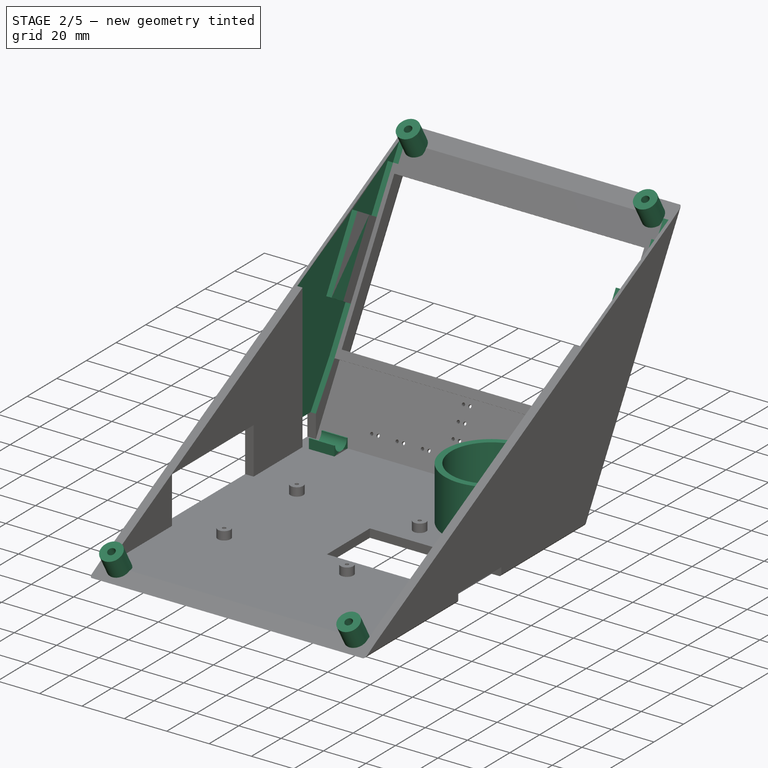
[diagram: stage 2 of 5 — iso view after this stage's code; geometry added in this stage tinted green]
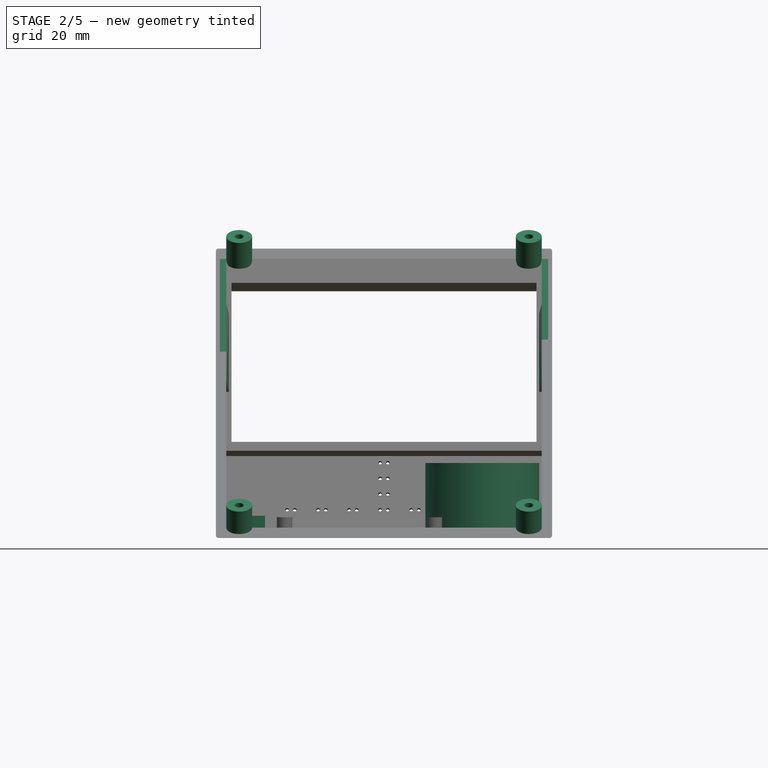
[diagram: stage 2 of 5 — front view after this stage's code; geometry added in this stage tinted green]
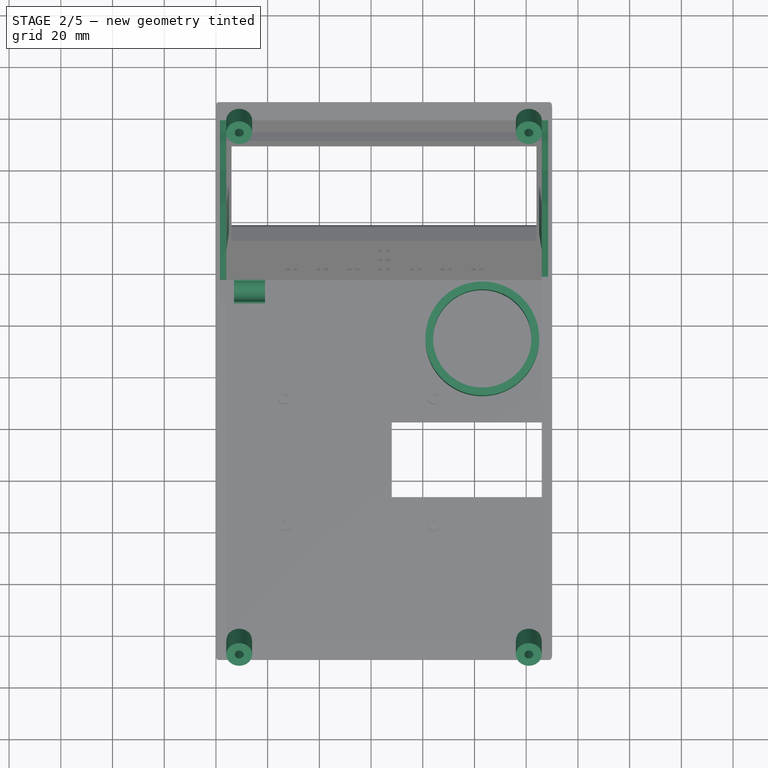
[diagram: stage 2 of 5 — top view after this stage's code; geometry added in this stage tinted green]
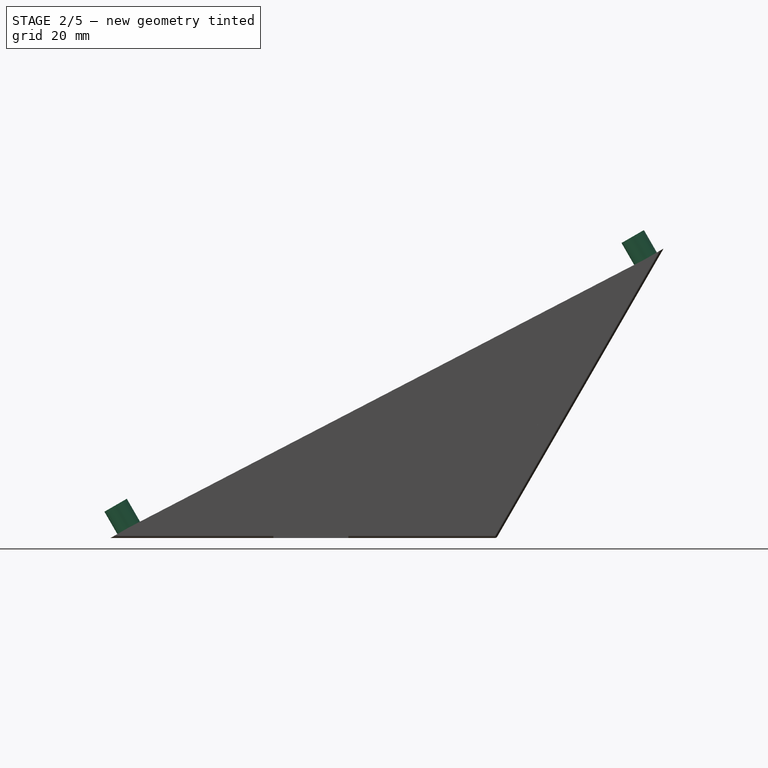
[diagram: stage 2 of 5 — right view after this stage's code; geometry added in this stage tinted green]
FEATURE [Sketcher::SketchObject] Sketch013
  ExternalGeometry = -> [Pocket004]
  MapMode = 5
  Placement = pos=(4,0,0) rot=(0.57735,0.57735,0.57735;2.0944rad)
  Support = -> [Pocket004]
  sketch-geometry (10):
    g0: LineSegment [constr] StartX=-2.3094 StartY=4 StartZ=0 EndX=-2.3094 EndY=14.3 EndZ=0
    g1: LineSegment [constr] StartX=-2.3094 StartY=14.3 StartZ=0 EndX=-11.3094 EndY=14.3 EndZ=0
    g2: LineSegment [constr] StartX=-11.3094 StartY=14.3 StartZ=0 EndX=-11.3094 EndY=4 EndZ=0
    g3: ArcOfCircle CenterX=-6.8094 CenterY=8.6 CenterZ=0 NormalX=0 NormalY=0 NormalZ=1 Radius=4 StartAngle=3.14159 EndAngle=6.28319
    g4: LineSegment StartX=-2.3094 StartY=8.6 StartZ=0 EndX=-2.8094 EndY=8.6 EndZ=0
    g5: LineSegment StartX=-10.8094 StartY=8.6 StartZ=0 EndX=-11.3094 EndY=8.6 EndZ=0
    g6: LineSegment StartX=-11.3094 StartY=8.6 StartZ=0 EndX=-11.3094 EndY=4 EndZ=0
    g7: LineSegment StartX=-11.3094 StartY=4 StartZ=0 EndX=-2.3094 EndY=4 EndZ=0
    g8: LineSegment StartX=-2.3094 StartY=4 StartZ=0 EndX=-2.3094 EndY=8.6 EndZ=0
    g9: LineSegment [constr] StartX=-6.8094 StartY=4.6 StartZ=0 EndX=-6.8094 EndY=4 EndZ=0
  constraints (32):
    c: Coincident(g0,g1)
    c: Coincident(g1,g2)
    c: Horizontal(g1)
    c: Vertical(g0)
    c: Vertical(g2)
    c: PointOnObject(g0,g-3)
    c: DistanceY(g2,g1) = 10.3
    c: PointOnObject(g4,g-3)
    c: PointOnObject(g4,g3)
    c: Perpendicular(g3,g4)
    c: PointOnObject(g5,g3)
    c: Radius(g3) = 4
    c: Perpendicular(g3,g5)
    c: Equal(g4,g5)
    c: Coincident(g4,g3)
    c: Perpendicular(g-3,g4)
    c: Coincident(g5,g3)
    c: Coincident(g8,g4)
    c: Coincident(g6,g5)
    c: PointOnObject(g9,g3)
    c: Perpendicular(g3,g9)
    c: Distance(g9) = 0.6
    c: Coincident(g7,g2)
    c: Coincident(g7,g0)
    c: Coincident(g0,g8)
    c: Coincident(g0,g-3)
    c: Coincident(g2,g6)
    c: Coincident(g2,g-5)
    c: PointOnObject(g5,g-5)
    c: Perpendicular(g-5,g5)
    c: PointOnObject(g9,g7)
    c: Perpendicular(g7,g9)
FEATURE [PartDesign::Pad] Pad008
  Length = 15
  Length2 = 2
  Placement = pos=(0,0,0) rot=(0.57735,0.57735,0.57735;2.0944rad)
  Profile = -> Sketch013
  Type = 0
FEATURE [Sketcher::SketchObject] Sketch014
  ExternalGeometry = -> [Pad008]
  MapMode = 5
  Placement = pos=(4,0,0) rot=(0.57735,0.57735,-0.57735;4.18879rad)
  Support = -> [Pad008]
  sketch-geometry (4):
    g0: LineSegment StartX=-11.3094 StartY=-4 StartZ=0 EndX=-2.3094 EndY=-4 EndZ=0
    g1: LineSegment StartX=-2.3094 StartY=-4 StartZ=0 EndX=-2.3094 EndY=-8.6 EndZ=0
    g2: LineSegment StartX=-2.3094 StartY=-8.6 StartZ=0 EndX=-11.3094 EndY=-8.6 EndZ=0
    g3: LineSegment StartX=-11.3094 StartY=-8.6 StartZ=0 EndX=-11.3094 EndY=-4 EndZ=0
  constraints (10):
    c: Coincident(g0,g1)
    c: Coincident(g1,g2)
    c: Coincident(g2,g3)
    c: Coincident(g3,g0)
    c: Horizontal(g0)
    c: Horizontal(g2)
    c: Vertical(g1)
    c: Vertical(g3)
    c: Coincident(g0,g-3)
    c: Coincident(g1,g-4)
FEATURE [PartDesign::Pocket] Pocket005
  Length = 3
  Placement = pos=(0,0,0) rot=(0.57735,0.57735,0.57735;2.0944rad)
  Profile = -> Sketch014
  Type = 0
FEATURE [Sketcher::SketchObject] Sketch015
  ExternalGeometry = -> [Pocket005]
  MapMode = 5
  Placement = pos=(0,0,0) rot=(0.654654,0.654654,0.377964;3.86433rad)
  Support = -> [Pocket005]
  sketch-geometry (44):
    g0: Circle CenterX=30.3094 CenterY=119.5 CenterZ=0 NormalX=0 NormalY=0 NormalZ=1 Radius=0.75
    g1: Circle CenterX=30.3094 CenterY=116.5 CenterZ=0 NormalX=0 NormalY=0 NormalZ=1 Radius=0.75
    g2: LineSegment [constr] StartX=30.3094 StartY=116.5 StartZ=0 EndX=30.3094 EndY=118 EndZ=0
    g3: LineSegment [constr] StartX=30.3094 StartY=119.5 StartZ=0 EndX=30.3094 EndY=118 EndZ=0
    g4: Circle CenterX=10.3094 CenterY=99.5 CenterZ=0 NormalX=0 NormalY=0 NormalZ=1 Radius=0.75
    g5: Circle CenterX=10.3094 CenterY=102.5 CenterZ=0 NormalX=0 NormalY=0 NormalZ=1 Radius=0.75
    g6: LineSegment [constr] StartX=10.3094 StartY=102.5 StartZ=0 EndX=10.3094 EndY=101 EndZ=0
    g7: LineSegment [constr] StartX=10.3094 StartY=99.5 StartZ=0 EndX=10.3094 EndY=101 EndZ=0
    g8: Circle CenterX=10.3094 CenterY=90.5 CenterZ=0 NormalX=0 NormalY=0 NormalZ=1 Radius=0.75
    g9: Circle CenterX=10.3094 CenterY=87.5 CenterZ=0 NormalX=0 NormalY=0 NormalZ=1 Radius=0.75
    g10: LineSegment [constr] StartX=10.3094 StartY=87.5 StartZ=0 EndX=10.3094 EndY=89 EndZ=0
    g11: LineSegment [constr] StartX=10.3094 StartY=90.5 StartZ=0 EndX=10.3094 EndY=89 EndZ=0
    g12: Circle CenterX=10.3094 CenterY=78.5 CenterZ=0 NormalX=0 NormalY=0 NormalZ=1 Radius=0.75
    g13: Circle CenterX=10.3094 CenterY=75.5 CenterZ=0 NormalX=0 NormalY=0 NormalZ=1 Radius=0.75
    g14: LineSegment [constr] StartX=10.3094 StartY=75.5 StartZ=0 EndX=10.3094 EndY=77 EndZ=0
    g15: LineSegment [constr] StartX=10.3094 StartY=78.5 StartZ=0 EndX=10.3094 EndY=77 EndZ=0
    g16: Circle CenterX=31.3094 CenterY=66.5 CenterZ=0 NormalX=0 NormalY=0 NormalZ=1 Radius=0.75
    g17: Circle CenterX=31.3094 CenterY=63.5 CenterZ=0 NormalX=0 NormalY=0 NormalZ=1 Radius=0.75
    g18: LineSegment [constr] StartX=31.3094 StartY=63.5 StartZ=0 EndX=31.3094 EndY=65 EndZ=0
    g19: LineSegment [constr] StartX=31.3094 StartY=66.5 StartZ=0 EndX=31.3094 EndY=65 EndZ=0
    g20: Circle CenterX=10.3094 CenterY=54.5 CenterZ=0 NormalX=0 NormalY=0 NormalZ=1 Radius=0.75
    g21: Circle CenterX=10.3094 CenterY=51.5 CenterZ=0 NormalX=0 NormalY=0 NormalZ=1 Radius=0.75
    g22: LineSegment [constr] StartX=10.3094 StartY=51.5 StartZ=0 EndX=10.3094 EndY=53 EndZ=0
    g23: LineSegment [constr] StartX=10.3094 StartY=54.5 StartZ=0 EndX=10.3094 EndY=53 EndZ=0
    g24: Circle CenterX=10.3094 CenterY=63.5 CenterZ=0 NormalX=0 NormalY=0 NormalZ=1 Radius=0.75
    g25: Circle CenterX=10.3094 CenterY=66.5 CenterZ=0 NormalX=0 NormalY=0 NormalZ=1 Radius=0.75
    g26: LineSegment [constr] StartX=10.3094 StartY=66.5 StartZ=0 EndX=10.3094 EndY=65 EndZ=0
    g27: LineSegment [constr] StartX=10.3094 StartY=63.5 StartZ=0 EndX=10.3094 EndY=65 EndZ=0
    g28: Circle CenterX=17.3094 CenterY=66.5 CenterZ=0 NormalX=0 NormalY=0 NormalZ=1 Radius=0.75
    g29: Circle CenterX=17.3094 CenterY=63.5 CenterZ=0 NormalX=0 NormalY=0 NormalZ=1 Radius=0.75
    g30: LineSegment [constr] StartX=17.3094 StartY=63.5 StartZ=0 EndX=17.3094 EndY=65 EndZ=0
    g31: LineSegment [constr] StartX=17.3094 StartY=66.5 StartZ=0 EndX=17.3094 EndY=65 EndZ=0
    g32: Circle CenterX=10.3094 CenterY=30.5 CenterZ=0 NormalX=0 NormalY=0 NormalZ=1 Radius=0.75
    g33: Circle CenterX=10.3094 CenterY=27.5 CenterZ=0 NormalX=0 NormalY=0 NormalZ=1 Radius=0.75
    g34: LineSegment [constr] StartX=10.3094 StartY=27.5 StartZ=0 EndX=10.3094 EndY=29 EndZ=0
    g35: LineSegment [constr] StartX=10.3094 StartY=30.5 StartZ=0 EndX=10.3094 EndY=29 EndZ=0
    g36: Circle CenterX=24.3094 CenterY=66.5 CenterZ=0 NormalX=0 NormalY=0 NormalZ=1 Radius=0.75
    g37: Circle CenterX=24.3094 CenterY=63.5 CenterZ=0 NormalX=0 NormalY=0 NormalZ=1 Radius=0.75
    g38: LineSegment [constr] StartX=24.3094 StartY=63.5 StartZ=0 EndX=24.3094 EndY=65 EndZ=0
    g39: LineSegment [constr] StartX=24.3094 StartY=66.5 StartZ=0 EndX=24.3094 EndY=65 EndZ=0
    g40: Circle CenterX=10.3094 CenterY=42.5 CenterZ=0 NormalX=0 NormalY=0 NormalZ=1 Radius=0.75
    g41: Circle CenterX=10.3094 CenterY=39.5 CenterZ=0 NormalX=0 NormalY=0 NormalZ=1 Radius=0.75
    g42: LineSegment [constr] StartX=10.3094 StartY=39.5 StartZ=0 EndX=10.3094 EndY=41 EndZ=0
    g43: LineSegment [constr] StartX=10.3094 StartY=42.5 StartZ=0 EndX=10.3094 EndY=41 EndZ=0
  constraints (114):
    c: Radius(g1) = 0.75
    c: Equal(g1,g0)
    c: Coincident(g2,g1)
    c: Coincident(g3,g0)
    c: Coincident(g3,g2)
    c: Equal(g2,g3)
    c: Parallel(g2,g3)
    c: Distance(g2) = 1.5
    c: Vertical(g2)
    c: Equal(g5,g4)
    c: Coincident(g6,g5)
    c: Coincident(g7,g4)
    c: Coincident(g7,g6)
    c: Equal(g6,g7)
    c: Parallel(g6,g7)
    c: Equal(g2,g6) = 1.5
    c: Vertical(g6)
    c: Coincident(g2,g-11)
    c: Equal(g9,g8)
    c: Coincident(g10,g9)
    c: Coincident(g11,g8)
    c: Coincident(g11,g10)
    c: Equal(g10,g11)
    c: Parallel(g10,g11)
    c: Vertical(g10)
    c: Equal(g13,g12)
    c: Coincident(g14,g13)
    c: Coincident(g15,g12)
    c: Coincident(g15,g14)
    c: Equal(g14,g15)
    c: Parallel(g14,g15)
    c: Vertical(g14)
    c: Equal(g17,g16)
    c: Coincident(g18,g17)
    c: Coincident(g19,g16)
    c: Coincident(g19,g18)
    c: Equal(g18,g19)
    c: Parallel(g18,g19)
    c: Vertical(g18)
    c: Equal(g21,g20)
    c: Coincident(g22,g21)
    c: Coincident(g23,g20)
    c: Coincident(g23,g22)
    c: Equal(g22,g23)
    c: Parallel(g22,g23)
    c: Vertical(g22)
    c: Coincident(g6,g-12)
    c: Coincident(g10,g-13)
    c: Coincident(g14,g-10)
    c: Coincident(g18,g-6)
    c: Equal(g25,g24)
    c: Coincident(g26,g25)
    c: Coincident(g27,g24)
    c: Coincident(g27,g26)
    c: Equal(g26,g27)
    c: Parallel(g26,g27)
    c: Vertical(g26)
    c: Equal(g29,g28)
    c: Coincident(g30,g29)
    c: Coincident(g31,g28)
    c: Coincident(g31,g30)
    c: Equal(g30,g31)
    c: Parallel(g30,g31)
    c: Vertical(g30)
    c: Coincident(g30,g-8)
    c: Coincident(g26,g-9)
    c: Equal(g33,g32)
    c: Coincident(g34,g33)
    c: Coincident(g35,g32)
    c: Coincident(g35,g34)
    c: Equal(g34,g35)
    c: Parallel(g34,g35)
    c: Vertical(g34)
    c: Coincident(g34,g-3)
    c: Coincident(g22,g-5)
    c: Equal(g10,g11)
    c: Equal(g11,g7)
    c: Equal(g7,g6)
    c: Equal(g6,g2)
    c: Equal(g2,g3)
    c: Equal(g1,g4)
    c: Equal(g1,g8)
    c: Equal(g1,g12)
    c: Equal(g1,g25)
    c: Equal(g1,g28)
    c: Equal(g1,g17)
    c: Equal(g1,g21)
    c: Equal(g1,g33)
    c: Distance(g34) = 1.5
    c: Distance(g22) = 1.5
    c: Distance(g18) = 1.5
    c: Distance(g30) = 1.5
    c: Distance(g27) = 1.5
    c: Distance(g14) = 1.5
    c: Equal(g37,g36)
    c: Coincident(g38,g37)
    c: Coincident(g39,g36)
    c: Coincident(g39,g38)
    c: Equal(g38,g39)
    c: Parallel(g38,g39)
    c: Vertical(g38)
    c: Equal(g18,g38) = 1.5
    c: Coincident(g38,g-7)
    c: Radius(g36) = 0.75
    c: Equal(g41,g40)
    c: Coincident(g42,g41)
    c: Coincident(g43,g40)
    c: Coincident(g43,g42)
    c: Equal(g42,g43)
    c: Parallel(g42,g43)
    c: Vertical(g42)
    c: Equal(g22,g42) = 1.5
    c: Coincident(g42,g-4)
    c: Radius(g41) = 0.75
FEATURE [PartDesign::Pocket] Pocket006
  Length = 5
  Placement = pos=(0,0,0) rot=(0.57735,0.57735,0.57735;2.0944rad)
  Profile = -> Sketch015
  Type = 2
FEATURE [Sketcher::SketchObject] Sketch016
  ExternalGeometry = -> [Pocket006]
  MapMode = 5
  Placement = pos=(0,-32.3094,55.9615) rot=(0.250563,0.250563,-0.935113;1.63783rad)
  Support = -> [Pocket006]
  sketch-geometry (6):
    g0: Circle CenterX=-103.923 CenterY=9 CenterZ=0 NormalX=0 NormalY=0 NormalZ=1 Radius=1.75
    g1: Circle CenterX=-103.923 CenterY=9 CenterZ=0 NormalX=0 NormalY=0 NormalZ=1 Radius=5
    g2: Circle CenterX=-103.923 CenterY=121 CenterZ=0 NormalX=0 NormalY=0 NormalZ=1 Radius=1.75
    g3: Circle CenterX=-103.923 CenterY=121 CenterZ=0 NormalX=0 NormalY=0 NormalZ=1 Radius=5
    g4: LineSegment [constr] StartX=-103.923 StartY=4 StartZ=0 EndX=-103.923 EndY=9 EndZ=0
    g5: LineSegment [constr] StartX=-103.923 StartY=121 StartZ=0 EndX=-103.923 EndY=126 EndZ=0
  constraints (14):
    c: Coincident(g1,g0)
    c: Coincident(g3,g2)
    c: Equal(g2,g0)
    c: Equal(g3,g1)
    c: Radius(g2) = 1.75
    c: Radius(g3) = 5
    c: PointOnObject(g0,g-5)
    c: PointOnObject(g2,g-5)
    c: Coincident(g4,g-5)
    c: Coincident(g4,g0)
    c: Coincident(g5,g2)
    c: Coincident(g5,g-5)
    c: Equal(g4,g5)
    c: Distance(g4) = 5
FEATURE [PartDesign::Pad] Pad009
  Length = 10
  Length2 = 1.5
  Placement = pos=(0,0,0) rot=(0.57735,0.57735,0.57735;2.0944rad)
  Profile = -> Sketch016
  Type = 4
FEATURE [Sketcher::SketchObject] Sketch017
  ExternalGeometry = -> [Pad009]
  MapMode = 5
  Placement = pos=(0,-37.3094,64.6218) rot=(0.250563,0.250563,-0.935113;1.63783rad)
  Support = -> [Pad009]
  sketch-geometry (6):
    g0: Circle CenterX=121.244 CenterY=121 CenterZ=0 NormalX=0 NormalY=0 NormalZ=1 Radius=1.75
    g1: Circle CenterX=121.244 CenterY=121 CenterZ=0 NormalX=0 NormalY=0 NormalZ=1 Radius=5
    g2: Circle CenterX=121.244 CenterY=9 CenterZ=0 NormalX=0 NormalY=0 NormalZ=1 Radius=5
    g3: Circle CenterX=121.244 CenterY=9 CenterZ=0 NormalX=0 NormalY=0 NormalZ=1 Radius=1.75
    g4: LineSegment [constr] StartX=121.244 StartY=121 StartZ=0 EndX=121.244 EndY=126 EndZ=0
    g5: LineSegment [constr] StartX=121.244 StartY=9 StartZ=0 EndX=121.244 EndY=4 EndZ=0
  constraints (15):
    c: Coincident(g3,g2)
    c: Coincident(g0,g1)
    c: Equal(g1,g2)
    c: Equal(g0,g3)
    c: Radius(g3) = 1.75
    c: Radius(g2) = 5
    c: PointOnObject(g0,g-3)
    c: PointOnObject(g2,g-3)
    c: Coincident(g4,g-3)
    c: Vertical(g4)
    c: Coincident(g5,g2)
    c: Coincident(g5,g-3)
    c: Coincident(g0,g4)
    c: Equal(g4,g5)
    c: Distance(g4) = 5
FEATURE [PartDesign::Pad] Pad010
  Length = 10
  Length2 = 1.5
  Placement = pos=(0,0,0) rot=(0.57735,0.57735,0.57735;2.0944rad)
  Profile = -> Sketch017
  Type = 4
FEATURE [PartDesign::Fillet] Fillet
  Base = -> Pad010 [Edge9,Edge1,Edge8,Edge35,Edge7,Edge3]
  Placement = pos=(0,0,0) rot=(0.57735,0.57735,0.57735;2.0944rad)
  Radius = 1
FEATURE [PartDesign::Fillet] Fillet001
  Base = -> Fillet [Edge98,Edge99,Edge100,Edge101]
  Placement = pos=(0,0,0) rot=(0.57735,0.57735,0.57735;2.0944rad)
  Radius = 2
FEATURE [Sketcher::SketchObject] Sketch018
  ExternalGeometry = -> [Fillet001]
  MapMode = 5
  Placement = pos=(4,0,0) rot=(0.57735,0.57735,0.57735;2.0944rad)
  Support = -> [Fillet001]
  sketch-geometry (11):
    g0: LineSegment StartX=-11.3094 StartY=14.8 StartZ=0 EndX=-11.3094 EndY=72.0696 EndZ=0
    g1: LineSegment StartX=-2.3094 StartY=14.8 StartZ=0 EndX=10.2265 EndY=33.7128 EndZ=0
    g2: LineSegment StartX=-11.3094 StartY=14.8 StartZ=0 EndX=-2.3094 EndY=14.8 EndZ=0
    g3: LineSegment StartX=-11.3094 StartY=72.0696 StartZ=0 EndX=57.6906 EndY=107.923 EndZ=0
    g4: LineSegment StartX=57.6906 StartY=107.923 StartZ=0 EndX=53.1906 EndY=100.129 EndZ=0
    g5: LineSegment StartX=53.1906 StartY=100.129 StartZ=0 EndX=49.7265 EndY=102.129 EndZ=0
    g6: LineSegment StartX=49.7265 StartY=102.129 StartZ=0 EndX=38.7265 EndY=83.0763 EndZ=0
    g7: LineSegment StartX=38.7265 StartY=83.0763 StartZ=0 EndX=25.7361 EndY=90.5763 EndZ=0
    g8: LineSegment StartX=25.7361 StartY=90.5763 StartZ=0 EndX=8.23612 EndY=60.2654 EndZ=0
    g9: LineSegment StartX=8.23612 StartY=60.2654 StartZ=0 EndX=21.2265 EndY=52.7654 EndZ=0
    g10: LineSegment StartX=21.2265 StartY=52.7654 StartZ=0 EndX=10.2265 EndY=33.7128 EndZ=0
  constraints (23):
    c: Coincident(g0,g-5)
    c: PointOnObject(g0,g-3)
    c: Vertical(g0)
    c: Coincident(g1,g-5)
    c: Coincident(g1,g-4)
    c: Coincident(g2,g0)
    c: Coincident(g2,g1)
    c: Coincident(g3,g0)
    c: Coincident(g3,g-3)
    c: Coincident(g4,g3)
    c: Coincident(g4,g-9)
    c: Coincident(g5,g4)
    c: Coincident(g5,g-10)
    c: Coincident(g6,g5)
    c: Coincident(g6,g-10)
    c: Coincident(g7,g6)
    c: Coincident(g7,g-8)
    c: Coincident(g8,g7)
    c: Coincident(g8,g-8)
    c: Coincident(g9,g8)
    c: Coincident(g9,g-7)
    c: Coincident(g10,g9)
    c: Coincident(g10,g1)
FEATURE [PartDesign::Pocket] Pocket007
  Length = 2.5
  Placement = pos=(0,0,0) rot=(0.57735,0.57735,0.57735;2.0944rad)
  Profile = -> Sketch018
  Type = 0
FEATURE [Sketcher::SketchObject] Sketch019
  ExternalGeometry = -> [Pocket007]
  MapMode = 5
  Placement = pos=(0,45.6547,79.0763) rot=(-0.250563,-0.250563,-0.935113;1.63783rad)
  Support = -> [Pocket007]
  sketch-geometry (3):
    g0: LineSegment StartX=23 StartY=4 StartZ=0 EndX=15.5 EndY=6.5 EndZ=0
    g1: LineSegment StartX=15.5 StartY=6.5 StartZ=0 EndX=15.5 EndY=5 EndZ=0
    g2: LineSegment StartX=15.5 StartY=5 StartZ=0 EndX=23 EndY=4 EndZ=0
  constraints (7):
    c: Coincident(g0,g-5)
    c: Coincident(g0,g-4)
    c: Coincident(g1,g0)
    c: Coincident(g2,g1)
    c: Coincident(g2,g0)
    c: Distance(g1) = 1.5
    c: PointOnObject(g1,g-4)
FEATURE [PartDesign::Pocket] Pocket008
  Length = 5
  Placement = pos=(0,0,0) rot=(0.57735,0.57735,0.57735;2.0944rad)
  Profile = -> Sketch019
  Type = 2
FEATURE [Sketcher::SketchObject] Sketch020
  ExternalGeometry = -> [Pocket008]
  MapMode = 5
  Placement = pos=(1e-12,45.6547,79.0763) rot=(-0.250563,-0.250563,-0.935113;1.63783rad)
  Support = -> [Pocket008]
  sketch-geometry (3):
    g0: LineSegment StartX=23 StartY=126 StartZ=0 EndX=15.5 EndY=125 EndZ=0
    g1: LineSegment StartX=15.5 StartY=125 StartZ=0 EndX=15.5 EndY=123.5 EndZ=0
    g2: LineSegment StartX=15.5 StartY=123.5 StartZ=0 EndX=23 EndY=126 EndZ=0
  constraints (7):
    c: Coincident(g0,g-3)
    c: Coincident(g1,g0)
    c: Coincident(g1,g-4)
    c: Coincident(g2,g1)
    c: Coincident(g2,g0)
    c: Distance(g1) = 1.5
    c: PointOnObject(g0,g-4)
FEATURE [PartDesign::Pocket] Pocket009
  Length = 5
  Placement = pos=(0,0,0) rot=(0.57735,0.57735,0.57735;2.0944rad)
  Profile = -> Sketch020
  Type = 2
FEATURE [Sketcher::SketchObject] Sketch021
  ExternalGeometry = -> [Pocket009]
  MapMode = 5
  Placement = pos=(126,0,0) rot=(0.57735,0.57735,-0.57735;4.18879rad)
  Support = -> [Pocket009]
  sketch-geometry (11):
    g0: LineSegment StartX=57.6906 StartY=-107.923 StartZ=0 EndX=53.1906 EndY=-100.129 EndZ=0
    g1: LineSegment StartX=53.1906 StartY=-100.129 StartZ=0 EndX=49.7265 EndY=-102.129 EndZ=0
    g2: LineSegment StartX=49.7265 StartY=-102.129 StartZ=0 EndX=38.7265 EndY=-83.0763 EndZ=0
    g3: LineSegment StartX=38.7265 StartY=-83.0763 StartZ=0 EndX=25.7361 EndY=-90.5763 EndZ=0
    g4: LineSegment StartX=25.7361 StartY=-90.5763 StartZ=0 EndX=8.23612 EndY=-60.2654 EndZ=0
    g5: LineSegment StartX=8.23612 StartY=-60.2654 StartZ=0 EndX=21.2265 EndY=-52.7654 EndZ=0
    g6: LineSegment StartX=21.2265 StartY=-52.7654 StartZ=0 EndX=10.2265 EndY=-33.7128 EndZ=0
    g7: LineSegment StartX=10.2265 StartY=-33.7128 StartZ=0 EndX=13.6906 EndY=-31.7128 EndZ=0
    g8: LineSegment StartX=13.6906 StartY=-31.7128 StartZ=0 EndX=-2.3094 EndY=-4 EndZ=0
    g9: LineSegment StartX=-2.3094 StartY=-4 StartZ=0 EndX=-2.3094 EndY=-76.7461 EndZ=0
    g10: LineSegment StartX=-2.3094 StartY=-76.7461 StartZ=0 EndX=57.6906 EndY=-107.923 EndZ=0
  constraints (23):
    c: Coincident(g0,g-5)
    c: Coincident(g0,g-6)
    c: Coincident(g1,g0)
    c: Coincident(g1,g-7)
    c: Coincident(g2,g1)
    c: Coincident(g2,g-8)
    c: Coincident(g3,g2)
    c: Coincident(g3,g-10)
    c: Coincident(g4,g-10)
    c: Coincident(g4,g3)
    c: Coincident(g5,g4)
    c: Coincident(g5,g-11)
    c: Coincident(g6,g5)
    c: Coincident(g6,g-11)
    c: Coincident(g7,g6)
    c: Coincident(g7,g-3)
    c: Coincident(g8,g7)
    c: Coincident(g8,g-3)
    c: Coincident(g9,g8)
    c: PointOnObject(g9,g-4)
    c: Coincident(g10,g9)
    c: Coincident(g10,g0)
    c: Vertical(g9)
FEATURE [PartDesign::Pocket] Pocket010
  Length = 2.5
  Placement = pos=(0,0,0) rot=(0.57735,0.57735,0.57735;2.0944rad)
  Profile = -> Sketch021
  Type = 0
FEATURE [Sketcher::SketchObject] Sketch022
  ExternalGeometry = -> [Pocket010]
  MapMode = 5
  Placement = pos=(0,0,4) rot=(0,0,-1;1.5708rad)
  Support = -> [Pocket010]
  sketch-geometry (6):
    g0: LineSegment [constr] StartX=2.3094 StartY=126 StartZ=0 EndX=25.3094 EndY=126 EndZ=0
    g1: LineSegment [constr] StartX=25.3094 StartY=126 StartZ=0 EndX=25.3094 EndY=103 EndZ=0
    g2: LineSegment [constr] StartX=25.3094 StartY=103 StartZ=0 EndX=2.3094 EndY=103 EndZ=0
    g3: LineSegment [constr] StartX=2.3094 StartY=103 StartZ=0 EndX=2.3094 EndY=126 EndZ=0
    g4: Circle CenterX=25.3094 CenterY=103 CenterZ=0 NormalX=0 NormalY=0 NormalZ=1 Radius=19
    g5: Circle CenterX=25.3094 CenterY=103 CenterZ=0 NormalX=0 NormalY=0 NormalZ=1 Radius=22
  constraints (15):
    c: Coincident(g0,g1)
    c: Coincident(g1,g2)
    c: Coincident(g2,g3)
    c: Coincident(g3,g0)
    c: Horizontal(g0)
    c: Horizontal(g2)
    c: Vertical(g1)
    c: Vertical(g3)
    c: Coincident(g0,g-4)
    c: Coincident(g4,g1)
    c: Radius(g4) = 19
    c: Coincident(g5,g1)
    c: Radius(g5) = 22
    c: Distance(g2) = 23
    c: Distance(g1) = 23
FEATURE [PartDesign::Pad] Pad011
  Length = 25
  Length2 = 100
  Placement = pos=(0,0,0) rot=(0.57735,0.57735,0.57735;2.0944rad)
  Profile = -> Sketch022
  Type = 0
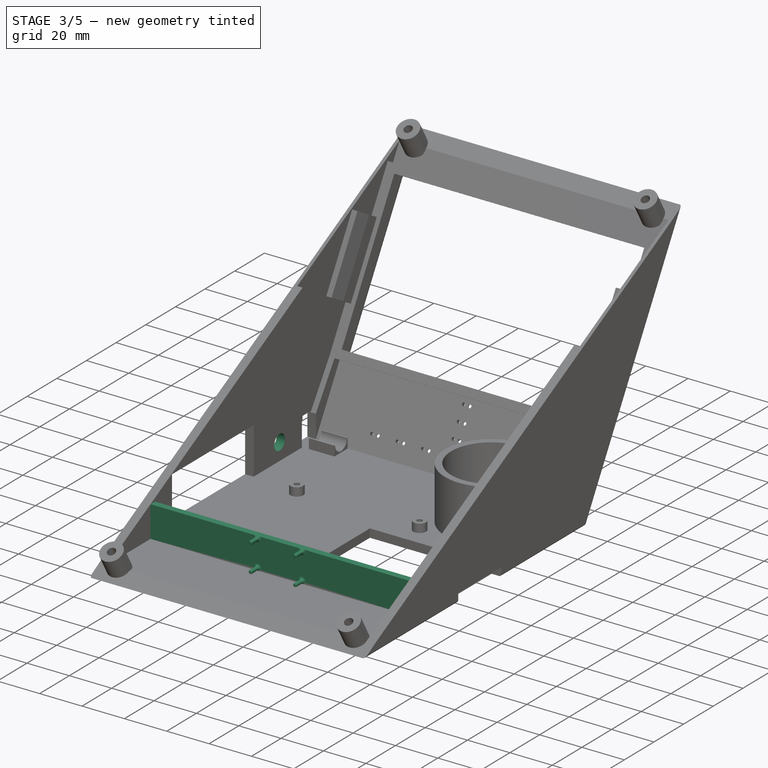
[diagram: stage 3 of 5 — iso view after this stage's code; geometry added in this stage tinted green]
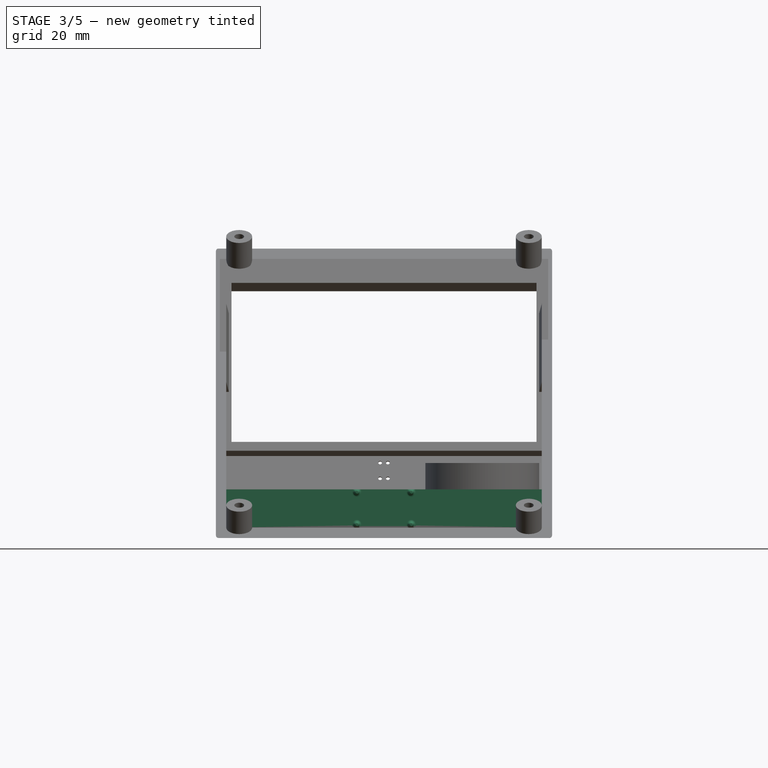
[diagram: stage 3 of 5 — front view after this stage's code; geometry added in this stage tinted green]
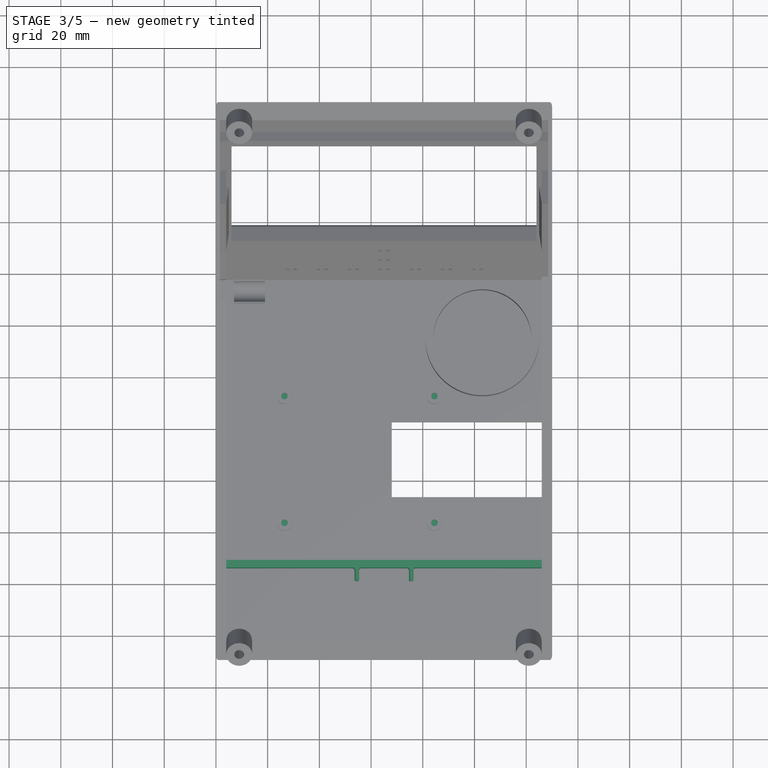
[diagram: stage 3 of 5 — top view after this stage's code; geometry added in this stage tinted green]
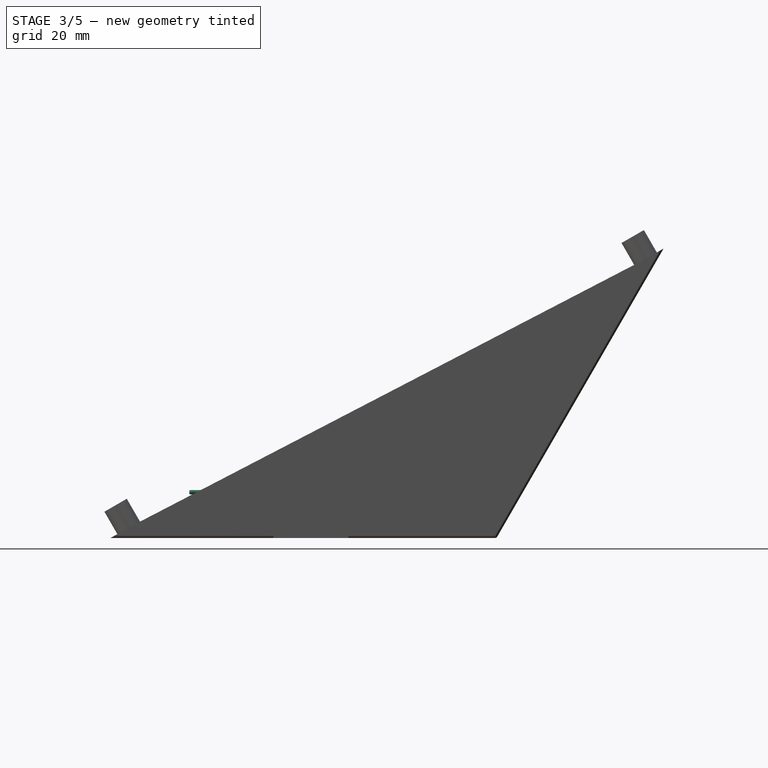
[diagram: stage 3 of 5 — right view after this stage's code; geometry added in this stage tinted green]
FEATURE [Sketcher::SketchObject] Sketch023
  ExternalGeometry = -> [Pad011]
  MapMode = 5
  Placement = pos=(0,-11.3094,0) rot=(0.57735,0.57735,0.57735;4.18879rad)
  Support = -> [Pad011]
  sketch-geometry (4):
    g0: LineSegment StartX=14.8 StartY=4 StartZ=0 EndX=4 EndY=4 EndZ=0
    g1: LineSegment StartX=4 StartY=4 StartZ=0 EndX=4 EndY=0 EndZ=0
    g2: LineSegment StartX=4 StartY=0 StartZ=0 EndX=14.8 EndY=0 EndZ=0
    g3: LineSegment StartX=14.8 StartY=0 StartZ=0 EndX=14.8 EndY=4 EndZ=0
  constraints (10):
    c: Coincident(g0,g1)
    c: Coincident(g1,g2)
    c: Coincident(g2,g3)
    c: Coincident(g3,g0)
    c: Horizontal(g0)
    c: Horizontal(g2)
    c: Vertical(g1)
    c: Vertical(g3)
    c: Coincident(g0,g-3)
    c: Coincident(g1,g-4)
FEATURE [PartDesign::Pocket] Pocket011
  Length = 0.5
  Placement = pos=(0,0,0) rot=(0.57735,0.57735,0.57735;2.0944rad)
  Profile = -> Sketch023
  Type = 0
FEATURE [Sketcher::SketchObject] Sketch024
  ExternalGeometry = -> [Pocket011]
  MapMode = 5
  Placement = pos=(0,0,14.8) rot=(0.707107,0.707107,0;3.14159rad)
  Support = -> [Pocket011]
  sketch-geometry (4):
    g0: LineSegment StartX=-2.3094 StartY=0 StartZ=0 EndX=-11.8094 EndY=0 EndZ=0
    g1: LineSegment StartX=-11.8094 StartY=0 StartZ=0 EndX=-11.8094 EndY=4 EndZ=0
    g2: LineSegment StartX=-11.8094 StartY=4 StartZ=0 EndX=-2.3094 EndY=4 EndZ=0
    g3: LineSegment StartX=-2.3094 StartY=4 StartZ=0 EndX=-2.3094 EndY=0 EndZ=0
  constraints (10):
    c: Coincident(g0,g1)
    c: Coincident(g1,g2)
    c: Coincident(g2,g3)
    c: Coincident(g3,g0)
    c: Horizontal(g0)
    c: Horizontal(g2)
    c: Vertical(g1)
    c: Vertical(g3)
    c: Coincident(g0,g-4)
    c: Coincident(g1,g-3)
FEATURE [PartDesign::Pocket] Pocket012
  Length = 0.5
  Placement = pos=(0,0,0) rot=(0.57735,0.57735,0.57735;2.0944rad)
  Profile = -> Sketch024
  Type = 0
FEATURE [Sketcher::SketchObject] Sketch025
  ExternalGeometry = -> [Pocket012]
  MapMode = 5
  Placement = pos=(0,-42.3094,73.282) rot=(0.250563,0.250563,-0.935113;1.63783rad)
  Support = -> [Pocket012]
  sketch-geometry (2):
    g0: Circle CenterX=121.244 CenterY=121 CenterZ=0 NormalX=0 NormalY=0 NormalZ=1 Radius=1.85
    g1: Circle CenterX=121.244 CenterY=9 CenterZ=0 NormalX=0 NormalY=0 NormalZ=1 Radius=1.85
  constraints (4):
    c: Equal(g1,g0)
    c: Radius(g0) = 1.85
    c: Coincident(g0,g-4)
    c: Coincident(g1,g-3)
FEATURE [PartDesign::Pocket] Pocket013
  Length = 12
  Placement = pos=(0,0,0) rot=(0.57735,0.57735,0.57735;2.0944rad)
  Profile = -> Sketch025
  Type = 0
FEATURE [Sketcher::SketchObject] Sketch026
  ExternalGeometry = -> [Pocket013]
  MapMode = 5
  Placement = pos=(0,-37.3094,64.6218) rot=(0.250563,0.250563,-0.935113;1.63783rad)
  Support = -> [Pocket013]
  sketch-geometry (2):
    g0: Circle CenterX=-103.923 CenterY=9 CenterZ=0 NormalX=0 NormalY=0 NormalZ=1 Radius=1.85
    g1: Circle CenterX=-103.923 CenterY=121 CenterZ=0 NormalX=0 NormalY=0 NormalZ=1 Radius=1.85
  constraints (4):
    c: Equal(g1,g0)
    c: Radius(g1) = 1.85
    c: Coincident(g0,g-3)
    c: Coincident(g1,g-4)
FEATURE [PartDesign::Pocket] Pocket014
  Length = 12
  Placement = pos=(0,0,0) rot=(0.57735,0.57735,0.57735;2.0944rad)
  Profile = -> Sketch026
  Type = 0
FEATURE [Sketcher::SketchObject] Sketch027
  ExternalGeometry = -> [Pocket014]
  MapMode = 5
  Placement = pos=(0,0,0) rot=(0.654654,0.654654,0.377964;3.86433rad)
  Support = -> [Pocket014]
  sketch-geometry (11):
    g0: Circle CenterX=10.3094 CenterY=101 CenterZ=0 NormalX=0 NormalY=0 NormalZ=1 Radius=3.4
    g1: Circle CenterX=10.3094 CenterY=89 CenterZ=0 NormalX=0 NormalY=0 NormalZ=1 Radius=3.4
    g2: Circle CenterX=10.3094 CenterY=77 CenterZ=0 NormalX=0 NormalY=0 NormalZ=1 Radius=3.4
    g3: Circle CenterX=31.3094 CenterY=65 CenterZ=0 NormalX=0 NormalY=0 NormalZ=1 Radius=3.4
    g4: Circle CenterX=24.3094 CenterY=65 CenterZ=0 NormalX=0 NormalY=0 NormalZ=1 Radius=3.4
    g5: Circle CenterX=17.3094 CenterY=65 CenterZ=0 NormalX=0 NormalY=0 NormalZ=1 Radius=3.4
    g6: Circle CenterX=10.3094 CenterY=65 CenterZ=0 NormalX=0 NormalY=0 NormalZ=1 Radius=3.4
    g7: Circle CenterX=10.3094 CenterY=53 CenterZ=0 NormalX=0 NormalY=0 NormalZ=1 Radius=3.4
    g8: Circle CenterX=10.3094 CenterY=41 CenterZ=0 NormalX=0 NormalY=0 NormalZ=1 Radius=3.4
    g9: Circle CenterX=10.3094 CenterY=29 CenterZ=0 NormalX=0 NormalY=0 NormalZ=1 Radius=3.4
    g10: Circle CenterX=30.3094 CenterY=118 CenterZ=0 NormalX=0 NormalY=0 NormalZ=1 Radius=3.4
  constraints (22):
    c: Equal(g8,g7)
    c: Equal(g6,g5)
    c: Equal(g5,g4)
    c: Equal(g4,g3)
    c: Equal(g3,g2)
    c: Equal(g2,g1)
    c: Equal(g1,g0)
    c: Radius(g8) = 3.4
    c: Coincident(g0,g-12)
    c: Coincident(g1,g-11)
    c: Coincident(g2,g-10)
    c: Coincident(g3,g-9)
    c: Coincident(g4,g-8)
    c: Coincident(g5,g-7)
    c: Coincident(g6,g-6)
    c: Equal(g8,g9) = 3.5
    c: Equal(g8,g10) = 3.5
    c: Coincident(g9,g-3)
    c: Coincident(g8,g-4)
    c: Coincident(g10,g-13)
    c: Coincident(g7,g-5)
    c: Equal(g6,g7)
FEATURE [PartDesign::Pocket] Pocket015
  Length = 3.5
  Placement = pos=(0,0,0) rot=(0.57735,0.57735,0.57735;2.0944rad)
  Profile = -> Sketch027
  Type = 0
FEATURE [Sketcher::SketchObject] Sketch028
  ExternalGeometry = -> [Pocket015]
  MapMode = 5
  Placement = pos=(4,0,0) rot=(0.57735,0.57735,0.57735;2.0944rad)
  Support = -> [Pocket015]
  sketch-geometry (5):
    g0: LineSegment [constr] StartX=-11.8094 StartY=4 StartZ=0 EndX=-26.8094 EndY=4 EndZ=0
    g1: LineSegment [constr] StartX=-26.8094 StartY=4 StartZ=0 EndX=-26.8094 EndY=12 EndZ=0
    g2: LineSegment [constr] StartX=-26.8094 StartY=12 StartZ=0 EndX=-11.8094 EndY=12 EndZ=0
    g3: LineSegment [constr] StartX=-11.8094 StartY=12 StartZ=0 EndX=-11.8094 EndY=4 EndZ=0
    g4: Circle CenterX=-26.8094 CenterY=12 CenterZ=0 NormalX=0 NormalY=0 NormalZ=1 Radius=3.6
  constraints (13):
    c: Coincident(g0,g1)
    c: Coincident(g1,g2)
    c: Coincident(g2,g3)
    c: Coincident(g3,g0)
    c: Horizontal(g0)
    c: Horizontal(g2)
    c: Vertical(g1)
    c: Vertical(g3)
    c: Coincident(g0,g-4)
    c: Coincident(g4,g1)
    c: Radius(g4) = 3.6
    c: Distance(g1) = 8
    c: Distance(g2) = 15
FEATURE [PartDesign::Pocket] Pocket016
  Length = 5
  Placement = pos=(0,0,0) rot=(0.57735,0.57735,0.57735;2.0944rad)
  Profile = -> Sketch028
  Type = 2
FEATURE [Sketcher::SketchObject] Sketch029
  ExternalGeometry = -> [Pocket016]
  MapMode = 5
  Placement = pos=(4,0,0) rot=(0.57735,0.57735,0.57735;2.0944rad)
  Support = -> [Pocket016]
  sketch-geometry (4):
    g0: LineSegment StartX=-113.84 StartY=18.793 StartZ=0 EndX=-110.84 EndY=18.793 EndZ=0
    g1: LineSegment StartX=-110.84 StartY=18.793 StartZ=0 EndX=-110.84 EndY=2.79301 EndZ=0
    g2: LineSegment StartX=-110.84 StartY=2.79301 StartZ=0 EndX=-113.84 EndY=2.79301 EndZ=0
    g3: LineSegment StartX=-113.84 StartY=2.79301 StartZ=0 EndX=-113.84 EndY=18.793 EndZ=0
  constraints (11):
    c: Coincident(g0,g1)
    c: Coincident(g1,g2)
    c: Coincident(g2,g3)
    c: Coincident(g3,g0)
    c: Horizontal(g0)
    c: Horizontal(g2)
    c: Vertical(g1)
    c: Vertical(g3)
    c: PointOnObject(g0,g-3)
    c: Distance(g3) = 16
    c: Distance(g0) = 3
FEATURE [PartDesign::Pad] Pad012
  Length = 122
  Length2 = 100
  Placement = pos=(0,0,0) rot=(0.57735,0.57735,0.57735;2.0944rad)
  Profile = -> Sketch029
  Type = 0
FEATURE [Sketcher::SketchObject] Sketch030
  ExternalGeometry = -> [Pad012]
  MapMode = 5
  Placement = pos=(0,-113.84,0) rot=(0.57735,0.57735,-0.57735;2.0944rad)
  Support = -> [Pad012]
  sketch-geometry (28):
    g0: LineSegment [constr] StartX=-18.793 StartY=126 StartZ=0 EndX=-11.443 EndY=126 EndZ=0
    g1: LineSegment [constr] StartX=-11.443 StartY=126 StartZ=0 EndX=-11.443 EndY=65 EndZ=0
    g2: LineSegment [constr] StartX=-11.443 StartY=65 StartZ=0 EndX=-18.793 EndY=65 EndZ=0
    g3: LineSegment [constr] StartX=-18.793 StartY=65 StartZ=0 EndX=-18.793 EndY=126 EndZ=0
    g4: LineSegment [constr] StartX=-4 StartY=4 StartZ=0 EndX=-11.443 EndY=4 EndZ=0
    g5: LineSegment [constr] StartX=-11.443 StartY=4 StartZ=0 EndX=-11.443 EndY=65 EndZ=0
    g6: LineSegment [constr] StartX=-11.443 StartY=65 StartZ=0 EndX=-4 EndY=65 EndZ=0
    g7: LineSegment [constr] StartX=-4 StartY=65 StartZ=0 EndX=-4 EndY=4 EndZ=0
    g8: LineSegment [constr] StartX=-11.443 StartY=65 StartZ=0 EndX=-17.693 EndY=65 EndZ=0
    g9: LineSegment [constr] StartX=-17.693 StartY=65 StartZ=0 EndX=-17.693 EndY=54.5 EndZ=0
    g10: LineSegment [constr] StartX=-17.693 StartY=54.5 StartZ=0 EndX=-11.443 EndY=54.5 EndZ=0
    g11: LineSegment [constr] StartX=-11.443 StartY=54.5 StartZ=0 EndX=-11.443 EndY=65 EndZ=0
    g12: LineSegment [constr] StartX=-11.443 StartY=65 StartZ=0 EndX=-5.19301 EndY=65 EndZ=0
    g13: LineSegment [constr] StartX=-5.19301 StartY=65 StartZ=0 EndX=-5.19301 EndY=75.5 EndZ=0
    g14: LineSegment [constr] StartX=-5.19301 StartY=75.5 StartZ=0 EndX=-11.443 EndY=75.5 EndZ=0
    g15: LineSegment [constr] StartX=-11.443 StartY=75.5 StartZ=0 EndX=-11.443 EndY=65 EndZ=0
    g16: LineSegment [constr] StartX=-11.443 StartY=65 StartZ=0 EndX=-17.693 EndY=65 EndZ=0
    g17: LineSegment [constr] StartX=-17.693 StartY=65 StartZ=0 EndX=-17.693 EndY=75.5 EndZ=0
    g18: LineSegment [constr] StartX=-17.693 StartY=75.5 StartZ=0 EndX=-11.443 EndY=75.5 EndZ=0
    g19: LineSegment [constr] StartX=-11.443 StartY=75.5 StartZ=0 EndX=-11.443 EndY=65 EndZ=0
    g20: LineSegment [constr] StartX=-11.443 StartY=65 StartZ=0 EndX=-5.19301 EndY=65 EndZ=0
    g21: LineSegment [constr] StartX=-5.19301 StartY=65 StartZ=0 EndX=-5.19301 EndY=54.5 EndZ=0
    g22: LineSegment [constr] StartX=-5.19301 StartY=54.5 StartZ=0 EndX=-11.443 EndY=54.5 EndZ=0
    g23: LineSegment [constr] StartX=-11.443 StartY=54.5 StartZ=0 EndX=-11.443 EndY=65 EndZ=0
    g24: Circle CenterX=-17.693 CenterY=54.5 CenterZ=0 NormalX=0 NormalY=0 NormalZ=1 Radius=0.85
    g25: Circle CenterX=-17.693 CenterY=75.5 CenterZ=0 NormalX=0 NormalY=0 NormalZ=1 Radius=0.85
    g26: Circle CenterX=-5.19301 CenterY=75.5 CenterZ=0 NormalX=0 NormalY=0 NormalZ=1 Radius=0.85
    g27: Circle CenterX=-5.19301 CenterY=54.5 CenterZ=0 NormalX=0 NormalY=0 NormalZ=1 Radius=0.85
  constraints (73):
    c: Coincident(g0,g1)
    c: Coincident(g1,g2)
    c: Coincident(g2,g3)
    c: Coincident(g3,g0)
    c: Horizontal(g0)
    c: Horizontal(g2)
    c: Vertical(g1)
    c: Vertical(g3)
    c: Coincident(g0,g-3)
    c: Coincident(g4,g5)
    c: Coincident(g5,g6)
    c: Coincident(g6,g7)
    c: Coincident(g7,g4)
    c: Horizontal(g4)
    c: Horizontal(g6)
    c: Vertical(g5)
    c: Vertical(g7)
    c: Coincident(g4,g-5)
    c: Coincident(g5,g1)
    c: Equal(g5,g1)
    c: Coincident(g8,g9)
    c: Coincident(g9,g10)
    c: Coincident(g10,g11)
    c: Coincident(g11,g8)
    c: Horizontal(g8)
    c: Horizontal(g10)
    c: Vertical(g9)
    c: Vertical(g11)
    c: Coincident(g8,g1)
    c: Coincident(g12,g13)
    c: Coincident(g13,g14)
    c: Coincident(g14,g15)
    c: Coincident(g15,g12)
    c: Horizontal(g12)
    c: Horizontal(g14)
    c: Vertical(g13)
    c: Vertical(g15)
    c: Coincident(g12,g1)
    c: Coincident(g16,g17)
    c: Coincident(g17,g18)
    c: Coincident(g18,g19)
    c: Coincident(g19,g16)
    c: Horizontal(g16)
    c: Horizontal(g18)
    c: Vertical(g17)
    c: Vertical(g19)
    c: Coincident(g16,g1)
    c: Coincident(g20,g21)
    c: Coincident(g21,g22)
    c: Coincident(g22,g23)
    c: Coincident(g23,g20)
    c: Horizontal(g20)
    c: Horizontal(g22)
    c: Vertical(g21)
    c: Vertical(g23)
    c: Coincident(g20,g1)
    c: Coincident(g20,g12)
    c: Coincident(g16,g8)
    c: Coincident(g22,g10)
    c: Coincident(g18,g14)
    c: Equal(g18,g14)
    c: Equal(g13,g21)
    c: Distance(g9) = 10.5
    c: Distance(g18) = 6.25
    c: Distance(g2) = 7.35
    c: Coincident(g27,g21)
    c: Coincident(g24,g9)
    c: Coincident(g25,g17)
    c: Coincident(g26,g13)
    c: Equal(g24,g27)
    c: Equal(g27,g26)
    c: Equal(g26,g25)
    c: Radius(g26) = 0.85
FEATURE [PartDesign::Pad] Pad013
  Length = 5
  Length2 = 100
  Placement = pos=(0,0,0) rot=(0.57735,0.57735,0.57735;2.0944rad)
  Profile = -> Sketch030
  Type = 0
FEATURE [PartDesign::Fillet] Fillet002
  Base = -> Pad013 [Edge348,Edge349,Edge347,Edge346]
  Placement = pos=(0,0,0) rot=(0.57735,0.57735,0.57735;2.0944rad)
  Radius = 1
FEATURE [PartDesign::Fillet] Fillet003
  Base = -> Fillet002 [Edge131,Edge75,Edge83,Edge133]
  Placement = pos=(0,0,0) rot=(0.57735,0.57735,0.57735;2.0944rad)
  Radius = 0.5
FEATURE [Sketcher::SketchObject] Sketch032
  ExternalGeometry = -> [Fillet003]
  MapMode = 5
  Placement = pos=(0,0,8) rot=(0,0,-1;1.5708rad)
  Support = -> [Fillet003]
  sketch-geometry (4):
    g0: Circle CenterX=47.3094 CenterY=84.5 CenterZ=0 NormalX=0 NormalY=0 NormalZ=1 Radius=1.25
    g1: Circle CenterX=47.3094 CenterY=26.5 CenterZ=0 NormalX=0 NormalY=0 NormalZ=1 Radius=1.25
    g2: Circle CenterX=96.3094 CenterY=84.5 CenterZ=0 NormalX=0 NormalY=0 NormalZ=1 Radius=1.25
    g3: Circle CenterX=96.3094 CenterY=26.5 CenterZ=0 NormalX=0 NormalY=0 NormalZ=1 Radius=1.25
  constraints (8):
    c: Coincident(g3,g-3)
    c: Coincident(g2,g-4)
    c: Coincident(g1,g-6)
    c: Coincident(g0,g-5)
    c: Radius(g0) = 1.25
    c: Equal(g0,g1)
    c: Equal(g0,g2)
    c: Equal(g0,g3)
FEATURE [PartDesign::Pocket] Pocket017
  Length = 7
  Placement = pos=(0,0,0) rot=(0.57735,0.57735,0.57735;2.0944rad)
  Profile = -> Sketch032
  Type = 0
FEATURE [Sketcher::SketchObject] Sketch033
  ExternalGeometry = -> [Pocket017]
  MapMode = 5
  Placement = pos=(0,-42.3094,73.282) rot=(0.250563,0.250563,-0.935113;1.63783rad)
  Support = -> [Pocket017]
  sketch-geometry (2):
    g0: Circle CenterX=121.244 CenterY=121 CenterZ=0 NormalX=0 NormalY=0 NormalZ=1 Radius=1.9
    g1: Circle CenterX=121.244 CenterY=9 CenterZ=0 NormalX=0 NormalY=0 NormalZ=1 Radius=1.9
  constraints (4):
    c: Coincident(g0,g-4)
    c: Coincident(g1,g-3)
    c: Radius(g1) = 1.9
    c: Equal(g1,g0)
FEATURE [PartDesign::Pocket] Pocket018
  Length = 5
  Placement = pos=(0,0,0) rot=(0.57735,0.57735,0.57735;2.0944rad)
  Profile = -> Sketch033
  Type = 1
FEATURE [Sketcher::SketchObject] Sketch034
  ExternalGeometry = -> [Pocket018]
  MapMode = 5
  Placement = pos=(0,-37.3094,64.6218) rot=(0.250563,0.250563,-0.935113;1.63783rad)
  Support = -> [Pocket018]
  sketch-geometry (2):
    g0: Circle CenterX=-103.923 CenterY=121 CenterZ=0 NormalX=0 NormalY=0 NormalZ=1 Radius=1.9
    g1: Circle CenterX=-103.923 CenterY=9 CenterZ=0 NormalX=0 NormalY=0 NormalZ=1 Radius=1.9
  constraints (4):
    c: Coincident(g0,g-4)
    c: Coincident(g1,g-3)
    c: Radius(g1) = 1.9
    c: Equal(g1,g0)
FEATURE [PartDesign::Pocket] Pocket019
  Length = 5
  Placement = pos=(0,0,0) rot=(0.57735,0.57735,0.57735;2.0944rad)
  Profile = -> Sketch034
  Type = 1
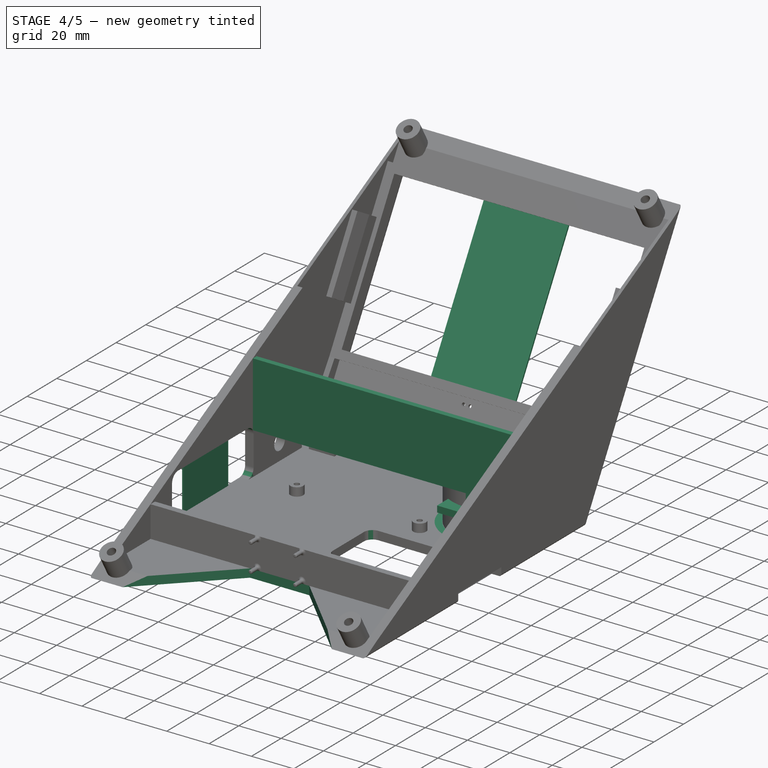
[diagram: stage 4 of 5 — iso view after this stage's code; geometry added in this stage tinted green]
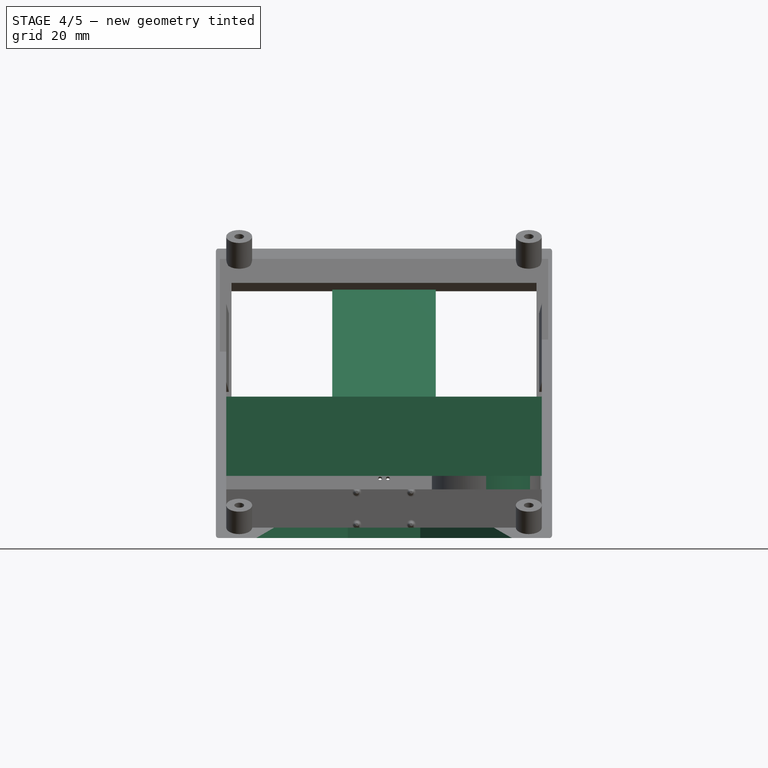
[diagram: stage 4 of 5 — front view after this stage's code; geometry added in this stage tinted green]
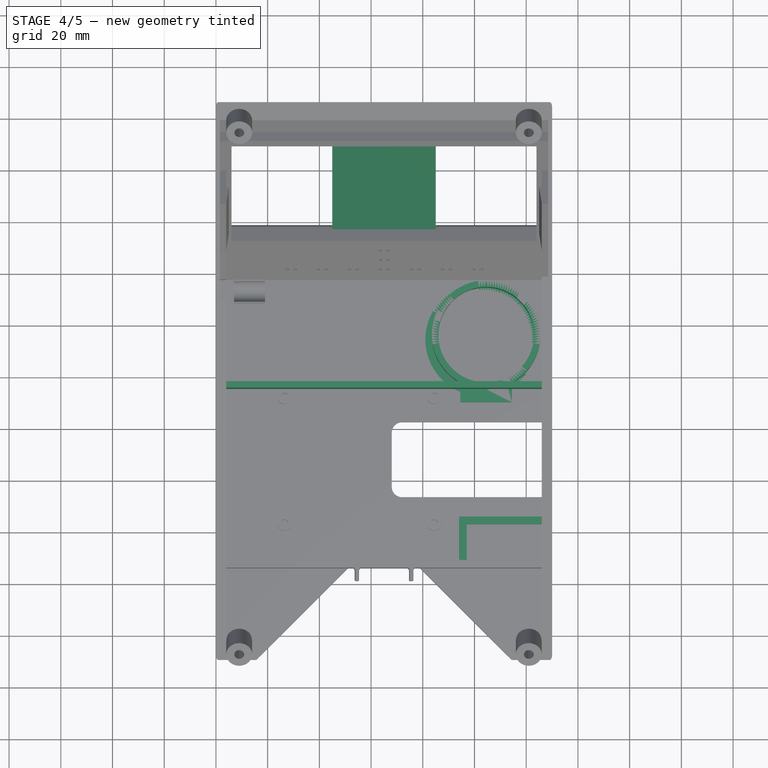
[diagram: stage 4 of 5 — top view after this stage's code; geometry added in this stage tinted green]
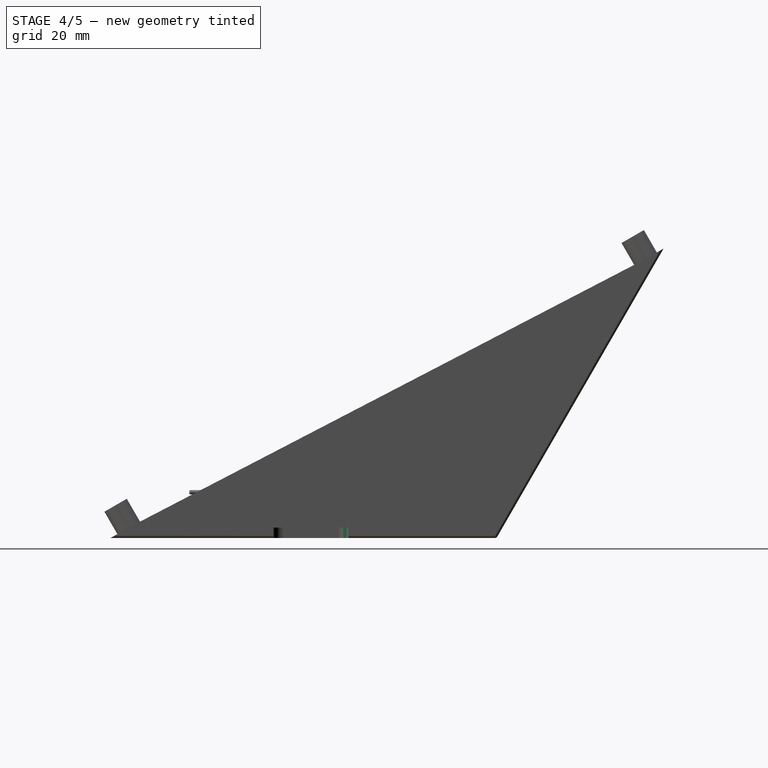
[diagram: stage 4 of 5 — right view after this stage's code; geometry added in this stage tinted green]
FEATURE [Sketcher::SketchObject] Sketch035
  ExternalGeometry = -> [Pocket019]
  MapMode = 5
  Placement = pos=(0,54.6547,94.6647) rot=(0.694747,0.694747,-0.186157;2.77349rad)
  Support = -> [Pocket019]
  sketch-geometry (12):
    g0: LineSegment StartX=-2 StartY=85 StartZ=0 EndX=-2.75 EndY=85 EndZ=0
    g1: LineSegment StartX=-2.75 StartY=85 StartZ=0 EndX=-2.75 EndY=45 EndZ=0
    g2: LineSegment StartX=-2.75 StartY=45 StartZ=0 EndX=-2 EndY=45 EndZ=0
    g3: LineSegment StartX=-2 StartY=45 StartZ=0 EndX=-2 EndY=85 EndZ=0
    g4: LineSegment [constr] StartX=-2.75 StartY=85 StartZ=0 EndX=-2 EndY=85 EndZ=0
    g5: LineSegment [constr] StartX=-2 StartY=85 StartZ=0 EndX=-2 EndY=124 EndZ=0
    g6: LineSegment [constr] StartX=-2 StartY=124 StartZ=0 EndX=-2.75 EndY=124 EndZ=0
    g7: LineSegment [constr] StartX=-2.75 StartY=124 StartZ=0 EndX=-2.75 EndY=85 EndZ=0
    g8: LineSegment [constr] StartX=-2.75 StartY=45 StartZ=0 EndX=-2 EndY=45 EndZ=0
    g9: LineSegment [constr] StartX=-2 StartY=45 StartZ=0 EndX=-2 EndY=6 EndZ=0
    g10: LineSegment [constr] StartX=-2 StartY=6 StartZ=0 EndX=-2.75 EndY=6 EndZ=0
    g11: LineSegment [constr] StartX=-2.75 StartY=6 StartZ=0 EndX=-2.75 EndY=45 EndZ=0
  constraints (32):
    c: Coincident(g0,g1)
    c: Coincident(g1,g2)
    c: Coincident(g2,g3)
    c: Coincident(g3,g0)
    c: Horizontal(g0)
    c: Horizontal(g2)
    c: Vertical(g1)
    c: Vertical(g3)
    c: PointOnObject(g0,g-3)
    c: Distance(g0) = 0.75
    c: Distance(g1) = 40
    c: Coincident(g4,g5)
    c: Coincident(g5,g6)
    c: Coincident(g6,g7)
    c: Coincident(g7,g4)
    c: Horizontal(g4)
    c: Horizontal(g6)
    c: Vertical(g5)
    c: Vertical(g7)
    c: Coincident(g4,g0)
    c: Coincident(g5,g-3)
    c: Coincident(g8,g9)
    c: Coincident(g9,g10)
    c: Coincident(g10,g11)
    c: Coincident(g11,g8)
    c: Horizontal(g8)
    c: Horizontal(g10)
    c: Vertical(g9)
    c: Vertical(g11)
    c: Coincident(g8,g1)
    c: Coincident(g9,g-3)
    c: Equal(g11,g7)
FEATURE [PartDesign::Pad] Pad014
  Length = 10
  Length2 = 100
  Placement = pos=(0,0,0) rot=(0.57735,0.57735,0.57735;2.0944rad)
  Profile = -> Sketch035
  Type = 2
FEATURE [PartDesign::Fillet] Fillet004
  Base = -> Pad014 [Edge224,Edge223,Edge177,Edge175]
  Placement = pos=(0,0,0) rot=(0.57735,0.57735,0.57735;2.0944rad)
  Radius = 4
FEATURE [PartDesign::Fillet] Fillet005
  Base = -> Fillet004 [Edge224,Edge226]
  Placement = pos=(0,0,0) rot=(0.57735,0.57735,0.57735;2.0944rad)
  Radius = 4
FEATURE [Sketcher::SketchObject] Sketch036
  ExternalGeometry = -> [Fillet005]
  MapMode = 5
  Placement = pos=(0,0,4) rot=(0,0,-1;1.5708rad)
  Support = -> [Fillet005]
  sketch-geometry (14):
    g0: LineSegment [constr] StartX=149.238 StartY=1 StartZ=0 EndX=113.84 EndY=1 EndZ=0
    g1: LineSegment [constr] StartX=113.84 StartY=1 StartZ=0 EndX=113.84 EndY=65 EndZ=0
    g2: LineSegment [constr] StartX=113.84 StartY=65 StartZ=0 EndX=149.238 EndY=65 EndZ=0
    g3: LineSegment [constr] StartX=149.238 StartY=65 StartZ=0 EndX=149.238 EndY=1 EndZ=0
    g4: LineSegment [constr] StartX=113.84 StartY=65 StartZ=0 EndX=149.238 EndY=65 EndZ=0
    g5: LineSegment [constr] StartX=149.238 StartY=65 StartZ=0 EndX=149.238 EndY=129 EndZ=0
    g6: LineSegment [constr] StartX=149.238 StartY=129 StartZ=0 EndX=113.84 EndY=129 EndZ=0
    g7: LineSegment [constr] StartX=113.84 StartY=129 StartZ=0 EndX=113.84 EndY=65 EndZ=0
    g8: LineSegment StartX=113.84 StartY=51 StartZ=0 EndX=113.84 EndY=79 EndZ=0
    g9: LineSegment StartX=113.84 StartY=51 StartZ=0 EndX=149.238 EndY=15.6026 EndZ=0
    g10: LineSegment StartX=113.84 StartY=79 StartZ=0 EndX=149.238 EndY=114.397 EndZ=0
    g11: LineSegment [constr] StartX=113.84 StartY=79 StartZ=0 EndX=113.84 EndY=65 EndZ=0
    g12: LineSegment [constr] StartX=113.84 StartY=65 StartZ=0 EndX=113.84 EndY=51 EndZ=0
    g13: LineSegment StartX=149.238 StartY=15.6026 StartZ=0 EndX=149.238 EndY=114.397 EndZ=0
  constraints (39):
    c: Coincident(g0,g1)
    c: Coincident(g1,g2)
    c: Coincident(g2,g3)
    c: Coincident(g3,g0)
    c: Horizontal(g0)
    c: Horizontal(g2)
    c: Vertical(g1)
    c: Vertical(g3)
    c: Coincident(g0,g-5)
    c: PointOnObject(g1,g-6)
    c: Coincident(g4,g5)
    c: Coincident(g5,g6)
    c: Coincident(g6,g7)
    c: Coincident(g7,g4)
    c: Horizontal(g4)
    c: Horizontal(g6)
    c: Vertical(g5)
    c: Vertical(g7)
    c: Coincident(g4,g1)
    c: Coincident(g5,g-5)
    c: Vertical(g8)
    c: Coincident(g9,g8)
    c: PointOnObject(g9,g-5)
    c: Coincident(g10,g8)
    c: PointOnObject(g10,g-5)
    c: Distance(g8) = 28
    c: Angle(g9) = -0.785398
    c: Angle(g10) = 0.785398
    c: Coincident(g11,g8)
    c: PointOnObject(g11,g2)
    c: PointOnObject(g12,g2)
    c: Coincident(g12,g8)
    c: Coincident(g12,g11)
    c: Equal(g12,g11)
    c: Vertical(g12)
    c: PointOnObject(g8,g-3)
    c: Equal(g3,g5)
    c: Coincident(g13,g9)
    c: Coincident(g13,g10)
FEATURE [PartDesign::Pocket] Pocket020
  Length = 5
  Placement = pos=(0,0,0) rot=(0.57735,0.57735,0.57735;2.0944rad)
  Profile = -> Sketch036
  Type = 0
FEATURE [Sketcher::SketchObject] Sketch037
  ExternalGeometry = -> [Pocket020]
  MapMode = 5
  Placement = pos=(0,0,4) rot=(0,0,-1;1.5708rad)
  Support = -> [Pocket020]
  sketch-geometry (12):
    g0: LineSegment [constr] StartX=48.3094 StartY=0 StartZ=0 EndX=56.8094 EndY=0 EndZ=0
    g1: LineSegment [constr] StartX=56.8094 StartY=0 StartZ=0 EndX=56.8094 EndY=0.75 EndZ=0
    g2: LineSegment [constr] StartX=56.8094 StartY=0.75 StartZ=0 EndX=48.3094 EndY=0.75 EndZ=0
    g3: LineSegment [constr] StartX=48.3094 StartY=0.75 StartZ=0 EndX=48.3094 EndY=0 EndZ=0
    g4: LineSegment StartX=56.8094 StartY=0.75 StartZ=0 EndX=86.8094 EndY=0.75 EndZ=0
    g5: LineSegment StartX=86.8094 StartY=0.75 StartZ=0 EndX=86.8094 EndY=0 EndZ=0
    g6: LineSegment StartX=86.8094 StartY=0 StartZ=0 EndX=56.8094 EndY=0 EndZ=0
    g7: LineSegment StartX=56.8094 StartY=0 StartZ=0 EndX=56.8094 EndY=0.75 EndZ=0
    g8: LineSegment [constr] StartX=86.8094 StartY=0.75 StartZ=0 EndX=95.3094 EndY=0.75 EndZ=0
    g9: LineSegment [constr] StartX=95.3094 StartY=0.75 StartZ=0 EndX=95.3094 EndY=0 EndZ=0
    g10: LineSegment [constr] StartX=95.3094 StartY=0 StartZ=0 EndX=86.8094 EndY=0 EndZ=0
    g11: LineSegment [constr] StartX=86.8094 StartY=0 StartZ=0 EndX=86.8094 EndY=0.75 EndZ=0
  constraints (32):
    c: Coincident(g0,g1)
    c: Coincident(g1,g2)
    c: Coincident(g2,g3)
    c: Coincident(g3,g0)
    c: Horizontal(g0)
    c: Horizontal(g2)
    c: Vertical(g1)
    c: Vertical(g3)
    c: Coincident(g0,g-5)
    c: Coincident(g4,g5)
    c: Coincident(g5,g6)
    c: Coincident(g6,g7)
    c: Coincident(g7,g4)
    c: Horizontal(g4)
    c: Horizontal(g6)
    c: Vertical(g5)
    c: Vertical(g7)
    c: Coincident(g4,g1)
    c: PointOnObject(g5,g-5)
    c: Coincident(g8,g9)
    c: Coincident(g9,g10)
    c: Coincident(g10,g11)
    c: Coincident(g11,g8)
    c: Horizontal(g8)
    c: Horizontal(g10)
    c: Vertical(g9)
    c: Vertical(g11)
    c: Coincident(g8,g4)
    c: Coincident(g9,g-5)
    c: Equal(g8,g2)
    c: DistanceX(g4,g4) = 30
    c: DistanceY(g5,g5) = 0.75
FEATURE [PartDesign::Pad] Pad015
  Length = 10
  Length2 = 100
  Placement = pos=(0,0,0) rot=(0.57735,0.57735,0.57735;2.0944rad)
  Profile = -> Sketch037
  Type = 2
FEATURE [Sketcher::SketchObject] Sketch038
  ExternalGeometry = -> [Pad015]
  MapMode = 5
  Placement = pos=(0,-3.03109,1.75) rot=(0.654654,0.654654,0.377964;3.86433rad)
  Support = -> [Pad015]
  sketch-geometry (33):
    g0: Circle CenterX=10.3094 CenterY=27.5 CenterZ=0 NormalX=0 NormalY=0 NormalZ=1 Radius=0.75
    g1: Circle CenterX=10.3094 CenterY=30.5 CenterZ=0 NormalX=0 NormalY=0 NormalZ=1 Radius=0.75
    g2: Circle CenterX=10.3094 CenterY=29 CenterZ=0 NormalX=0 NormalY=0 NormalZ=1 Radius=3.4
    g3: Circle CenterX=10.3094 CenterY=41 CenterZ=0 NormalX=0 NormalY=0 NormalZ=1 Radius=3.4
    g4: Circle CenterX=10.3094 CenterY=39.5 CenterZ=0 NormalX=0 NormalY=0 NormalZ=1 Radius=0.75
    g5: Circle CenterX=10.3094 CenterY=42.5 CenterZ=0 NormalX=0 NormalY=0 NormalZ=1 Radius=0.75
    g6: Circle CenterX=10.3094 CenterY=53 CenterZ=0 NormalX=0 NormalY=0 NormalZ=1 Radius=3.4
    g7: Circle CenterX=10.3094 CenterY=51.5 CenterZ=0 NormalX=0 NormalY=0 NormalZ=1 Radius=0.75
    g8: Circle CenterX=10.3094 CenterY=54.5 CenterZ=0 NormalX=0 NormalY=0 NormalZ=1 Radius=0.75
    g9: Circle CenterX=10.3094 CenterY=65 CenterZ=0 NormalX=0 NormalY=0 NormalZ=1 Radius=3.4
    g10: Circle CenterX=10.3094 CenterY=63.5 CenterZ=0 NormalX=0 NormalY=0 NormalZ=1 Radius=0.75
    g11: Circle CenterX=10.3094 CenterY=66.5 CenterZ=0 NormalX=0 NormalY=0 NormalZ=1 Radius=0.75
    g12: Circle CenterX=17.3094 CenterY=63.5 CenterZ=0 NormalX=0 NormalY=0 NormalZ=1 Radius=0.75
    g13: Circle CenterX=17.3094 CenterY=66.5 CenterZ=0 NormalX=0 NormalY=0 NormalZ=1 Radius=0.75
    g14: Circle CenterX=17.3094 CenterY=65 CenterZ=0 NormalX=0 NormalY=0 NormalZ=1 Radius=3.4
    g15: Circle CenterX=24.3094 CenterY=66.5 CenterZ=0 NormalX=0 NormalY=0 NormalZ=1 Radius=0.75
    g16: Circle CenterX=24.3094 CenterY=63.5 CenterZ=0 NormalX=0 NormalY=0 NormalZ=1 Radius=0.75
    g17: Circle CenterX=24.3094 CenterY=65 CenterZ=0 NormalX=0 NormalY=0 NormalZ=1 Radius=3.4
    g18: Circle CenterX=31.3094 CenterY=63.5 CenterZ=0 NormalX=0 NormalY=0 NormalZ=1 Radius=0.75
    g19: Circle CenterX=31.3094 CenterY=66.5 CenterZ=0 NormalX=0 NormalY=0 NormalZ=1 Radius=0.75
    g20: Circle CenterX=31.3094 CenterY=65 CenterZ=0 NormalX=0 NormalY=0 NormalZ=1 Radius=3.4
    g21: Circle CenterX=10.3094 CenterY=75.5 CenterZ=0 NormalX=0 NormalY=0 NormalZ=1 Radius=0.75
    g22: Circle CenterX=10.3094 CenterY=78.5 CenterZ=0 NormalX=0 NormalY=0 NormalZ=1 Radius=0.75
    g23: Circle CenterX=10.3094 CenterY=77 CenterZ=0 NormalX=0 NormalY=0 NormalZ=1 Radius=3.4
    g24: Circle CenterX=10.3094 CenterY=87.5 CenterZ=0 NormalX=0 NormalY=0 NormalZ=1 Radius=0.75
    g25: Circle CenterX=10.3094 CenterY=90.5 CenterZ=0 NormalX=0 NormalY=0 NormalZ=1 Radius=0.75
    g26: Circle CenterX=10.3094 CenterY=89 CenterZ=0 NormalX=0 NormalY=0 NormalZ=1 Radius=3.4
    g27: Circle CenterX=10.3094 CenterY=99.5 CenterZ=0 NormalX=0 NormalY=0 NormalZ=1 Radius=0.75
    g28: Circle CenterX=10.3094 CenterY=102.5 CenterZ=0 NormalX=0 NormalY=0 NormalZ=1 Radius=0.75
    g29: Circle CenterX=10.3094 CenterY=101 CenterZ=0 NormalX=0 NormalY=0 NormalZ=1 Radius=3.4
    g30: Circle CenterX=30.3094 CenterY=119.5 CenterZ=0 NormalX=0 NormalY=0 NormalZ=1 Radius=0.75
    g31: Circle CenterX=30.3094 CenterY=116.5 CenterZ=0 NormalX=0 NormalY=0 NormalZ=1 Radius=0.75
    g32: Circle CenterX=30.3094 CenterY=118 CenterZ=0 NormalX=0 NormalY=0 NormalZ=1 Radius=3.4
  constraints (66):
    c: Coincident(g0,g-34)
    c: Coincident(g1,g-33)
    c: Coincident(g2,g-32)
    c: Equal(g2,g-32)
    c: Coincident(g3,g-29)
    c: Coincident(g4,g-30)
    c: Coincident(g5,g-31)
    c: Equal(g4,g-30)
    c: Equal(g5,g-31)
    c: Equal(g3,g-29)
    c: Equal(g0,g-34)
    c: Equal(g1,g-33)
    c: Coincident(g6,g-26)
    c: Coincident(g7,g-28)
    c: Coincident(g8,g-27)
    c: Equal(g8,g-27)
    c: Equal(g7,g-28)
    c: Equal(g6,g-26)
    c: Coincident(g9,g-15)
    c: Coincident(g10,g-16)
    c: Coincident(g11,g-17)
    c: Coincident(g12,g-20)
    c: Coincident(g13,g-19)
    c: Coincident(g14,g-18)
    c: Equal(g12,g-20)
    c: Equal(g13,g-19)
    c: Equal(g14,g-18)
    c: Equal(g11,g-17)
    c: Equal(g10,g-16)
    c: Equal(g9,g-15)
    c: Coincident(g15,g-22)
    c: Coincident(g16,g-23)
    c: Coincident(g17,g-21)
    c: Coincident(g18,g-24)
    c: Coincident(g19,g-25)
    c: Equal(g17,g-21)
    c: Equal(g16,g-23)
    c: Equal(g15,g-22)
    c: Equal(g18,g-24)
    c: Equal(g19,g-25)
    c: Coincident(g20,g-35)
    c: Equal(g20,g-35)
    c: Coincident(g21,g-14)
    c: Coincident(g22,g-13)
    c: Coincident(g23,g-12)
    c: Equal(g21,g-14)
    c: Equal(g22,g-13)
    c: Equal(g23,g-12)
    c: Coincident(g24,g-10)
    c: Coincident(g25,g-11)
    c: Coincident(g26,g-9)
    c: Equal(g25,g-11)
    c: Equal(g24,g-10)
    c: Equal(g26,g-9)
    c: Coincident(g27,g-8)
    c: Coincident(g28,g-7)
    c: Coincident(g29,g-6)
    c: Equal(g27,g-8)
    c: Equal(g28,g-7)
    c: Equal(g29,g-6)
    c: Coincident(g30,g-5)
    c: Coincident(g31,g-4)
    c: Coincident(g32,g-3)
    c: Equal(g30,g-5)
    c: Equal(g31,g-4)
    c: Equal(g32,g-3)
FEATURE [PartDesign::Pad] Pad016
  Length = 0.75
  Length2 = 100
  Placement = pos=(0,0,0) rot=(0.57735,0.57735,0.57735;2.0944rad)
  Profile = -> Sketch038
  Type = 0
FEATURE [Sketcher::SketchObject] Sketch039
  ExternalGeometry = -> [Pad016]
  MapMode = 5
  Placement = pos=(0,0,4) rot=(0,0,-1;1.5708rad)
  Support = -> [Pad016]
  sketch-geometry (12):
    g0: LineSegment [constr] StartX=110.84 StartY=126 StartZ=0 EndX=96.8402 EndY=126 EndZ=0
    g1: LineSegment [constr] StartX=110.84 StartY=97 StartZ=0 EndX=110.84 EndY=126 EndZ=0
    g2: LineSegment StartX=110.84 StartY=94 StartZ=0 EndX=93.8402 EndY=94 EndZ=0
    g3: LineSegment StartX=93.8402 StartY=94 StartZ=0 EndX=93.8402 EndY=126 EndZ=0
    g4: LineSegment StartX=110.84 StartY=97 StartZ=0 EndX=96.8402 EndY=97 EndZ=0
    g5: LineSegment StartX=96.8402 StartY=97 StartZ=0 EndX=96.8402 EndY=126 EndZ=0
    g6: LineSegment StartX=93.8402 StartY=126 StartZ=0 EndX=96.8402 EndY=126 EndZ=0
    g7: LineSegment StartX=110.84 StartY=94 StartZ=0 EndX=110.84 EndY=97 EndZ=0
    g8: LineSegment [constr] StartX=96.8402 StartY=97 StartZ=0 EndX=93.8402 EndY=97 EndZ=0
    g9: LineSegment [constr] StartX=93.8402 StartY=97 StartZ=0 EndX=93.8402 EndY=94 EndZ=0
    g10: LineSegment [constr] StartX=93.8402 StartY=94 StartZ=0 EndX=96.8402 EndY=94 EndZ=0
    g11: LineSegment [constr] StartX=96.8402 StartY=94 StartZ=0 EndX=96.8402 EndY=97 EndZ=0
  constraints (34):
    c: Coincident(g1,g0)
    c: Horizontal(g0)
    c: Vertical(g1)
    c: Coincident(g0,g-3)
    c: PointOnObject(g2,g-3)
    c: Horizontal(g2)
    c: Coincident(g3,g2)
    c: PointOnObject(g3,g-4)
    c: Vertical(g3)
    c: PointOnObject(g4,g-3)
    c: Horizontal(g4)
    c: PointOnObject(g5,g-4)
    c: Vertical(g5)
    c: Coincident(g6,g3)
    c: Coincident(g6,g5)
    c: Coincident(g7,g2)
    c: Coincident(g7,g4)
    c: Coincident(g4,g1)
    c: Coincident(g5,g0)
    c: Coincident(g4,g5)
    c: DistanceX(g4,g4) = 14
    c: DistanceY(g5,g5) = 29
    c: Coincident(g8,g9)
    c: Coincident(g9,g10)
    c: Coincident(g10,g11)
    c: Coincident(g11,g8)
    c: Horizontal(g8)
    c: Horizontal(g10)
    c: Vertical(g9)
    c: Vertical(g11)
    c: Coincident(g8,g4)
    c: Coincident(g9,g2)
    c: DistanceX(g8,g8) = 3
    c: DistanceY(g11,g11) = 3
FEATURE [PartDesign::Pad] Pad017
  Length = 4
  Length2 = 100
  Placement = pos=(0,0,0) rot=(0.57735,0.57735,0.57735;2.0944rad)
  Profile = -> Sketch039
  Type = 0
FEATURE [Sketcher::SketchObject] Sketch040
  ExternalGeometry = -> [Pad017]
  MapMode = 5
  Placement = pos=(0,0,29) rot=(0,0,-1;1.5708rad)
  Support = -> [Pad017]
  sketch-geometry (1):
    g0: Circle CenterX=25.3094 CenterY=103 CenterZ=0 NormalX=0 NormalY=0 NormalZ=1 Radius=22
  constraints (2):
    c: Coincident(g0,g-3)
    c: Equal(g0,g-3)
FEATURE [PartDesign::Pocket] Pocket021
  Length = 25
  Placement = pos=(0,0,0) rot=(0.57735,0.57735,0.57735;2.0944rad)
  Profile = -> Sketch040
  Type = 0
FEATURE [Sketcher::SketchObject] Sketch041
  ExternalGeometry = -> [Pocket021]
  MapMode = 5
  Placement = pos=(0,0,4) rot=(0,0,-1;1.5708rad)
  Support = -> [Pocket021]
  sketch-geometry (6):
    g0: LineSegment [constr] StartX=2.3094 StartY=126 StartZ=0 EndX=23.8094 EndY=126 EndZ=0
    g1: LineSegment [constr] StartX=23.8094 StartY=126 StartZ=0 EndX=23.8094 EndY=104.5 EndZ=0
    g2: LineSegment [constr] StartX=23.8094 StartY=104.5 StartZ=0 EndX=2.3094 EndY=104.5 EndZ=0
    g3: LineSegment [constr] StartX=2.3094 StartY=104.5 StartZ=0 EndX=2.3094 EndY=126 EndZ=0
    g4: Circle CenterX=23.8094 CenterY=104.5 CenterZ=0 NormalX=0 NormalY=0 NormalZ=1 Radius=18.5
    g5: Circle CenterX=23.8094 CenterY=104.5 CenterZ=0 NormalX=0 NormalY=0 NormalZ=1 Radius=21
  constraints (15):
    c: Coincident(g0,g1)
    c: Coincident(g1,g2)
    c: Coincident(g2,g3)
    c: Coincident(g3,g0)
    c: Horizontal(g0)
    c: Horizontal(g2)
    c: Vertical(g1)
    c: Vertical(g3)
    c: Coincident(g0,g-4)
    c: Distance(g1) = 21.5
    c: Distance(g2) = 21.5
    c: Coincident(g4,g1)
    c: Coincident(g5,g1)
    c: Radius(g4) = 18.5
    c: Radius(g5) = 21
FEATURE [PartDesign::Pad] Pad018
  Length = 20
  Length2 = 100
  Placement = pos=(0,0,0) rot=(0.57735,0.57735,0.57735;2.0944rad)
  Profile = -> Sketch041
  Type = 0
FEATURE [Sketcher::SketchObject] Sketch042
  ExternalGeometry = -> [Pad018]
  MapMode = 5
  Placement = pos=(0,-110.84,0) rot=(0.57735,0.57735,0.57735;4.18879rad)
  Support = -> [Pad018]
  sketch-geometry (8):
    g0: LineSegment [constr] StartX=4 StartY=104.5 StartZ=0 EndX=18 EndY=104.5 EndZ=0
    g1: LineSegment [constr] StartX=18 StartY=104.5 StartZ=0 EndX=18 EndY=114.5 EndZ=0
    g2: LineSegment [constr] StartX=18 StartY=114.5 StartZ=0 EndX=4 EndY=114.5 EndZ=0
    g3: LineSegment [constr] StartX=4 StartY=114.5 StartZ=0 EndX=4 EndY=104.5 EndZ=0
    g4: LineSegment StartX=18 StartY=114.5 StartZ=0 EndX=15 EndY=114.5 EndZ=0
    g5: LineSegment StartX=15 StartY=114.5 StartZ=0 EndX=15 EndY=94.5 EndZ=0
    g6: LineSegment StartX=15 StartY=94.5 StartZ=0 EndX=18 EndY=94.5 EndZ=0
    g7: LineSegment StartX=18 StartY=94.5 StartZ=0 EndX=18 EndY=114.5 EndZ=0
  constraints (22):
    c: Coincident(g0,g1)
    c: Coincident(g1,g2)
    c: Coincident(g2,g3)
    c: Coincident(g3,g0)
    c: Horizontal(g0)
    c: Horizontal(g2)
    c: Vertical(g1)
    c: Vertical(g3)
    c: Coincident(g0,g-3)
    c: Coincident(g4,g5)
    c: Coincident(g5,g6)
    c: Coincident(g6,g7)
    c: Coincident(g7,g4)
    c: Horizontal(g4)
    c: Horizontal(g6)
    c: Vertical(g5)
    c: Vertical(g7)
    c: Coincident(g4,g1)
    c: Distance(g2) = 14
    c: Distance(g4) = 3
    c: Distance(g1) = 10
    c: Distance(g7) = 20
FEATURE [PartDesign::Pad] Pad019
  Length = 0
  Length2 = 10
  Placement = pos=(0,0,0) rot=(0.57735,0.57735,0.57735;2.0944rad)
  Profile = -> Sketch042
  Type = 2
FEATURE [Sketcher::SketchObject] Sketch043
  ExternalGeometry = -> [Pad019]
  MapMode = 5
  Placement = pos=(0,0,18) rot=(0,0,-1;1.5708rad)
  Support = -> [Pad019]
  sketch-geometry (4):
    g0: LineSegment StartX=110.84 StartY=114.5 StartZ=0 EndX=49.8402 EndY=114.5 EndZ=0
    g1: LineSegment StartX=49.8402 StartY=114.5 StartZ=0 EndX=49.8402 EndY=94.5 EndZ=0
    g2: LineSegment StartX=49.8402 StartY=94.5 StartZ=0 EndX=110.84 EndY=94.5 EndZ=0
    g3: LineSegment StartX=110.84 StartY=94.5 StartZ=0 EndX=110.84 EndY=114.5 EndZ=0
  constraints (11):
    c: Coincident(g0,g1)
    c: Coincident(g1,g2)
    c: Coincident(g2,g3)
    c: Coincident(g3,g0)
    c: Horizontal(g0)
    c: Horizontal(g2)
    c: Vertical(g1)
    c: Vertical(g3)
    c: Coincident(g0,g-3)
    c: PointOnObject(g1,g-5)
    c: DistanceX(g0,g0) = 61
FEATURE [PartDesign::Pocket] Pocket022
  Length = 5
  Placement = pos=(0,0,0) rot=(0.57735,0.57735,0.57735;2.0944rad)
  Profile = -> Sketch043
  Type = 2
FEATURE [Sketcher::SketchObject] Sketch044
  ExternalGeometry = -> [Pocket022]
  MapMode = 5
  Placement = pos=(126,0,0) rot=(0.57735,0.57735,-0.57735;4.18879rad)
  Support = -> [Pocket022]
  sketch-geometry (5):
    g0: LineSegment StartX=-44.8094 StartY=-24 StartZ=0 EndX=-42.3094 EndY=-24 EndZ=0
    g1: LineSegment StartX=-42.3094 StartY=-24 StartZ=0 EndX=-42.3094 EndY=-54.6625 EndZ=0
    g2: LineSegment StartX=-42.3094 StartY=-54.6625 StartZ=0 EndX=-44.8094 EndY=-54.6625 EndZ=0
    g3: LineSegment StartX=-44.8094 StartY=-54.6625 StartZ=0 EndX=-44.8094 EndY=-24 EndZ=0
    g4: GeomPoint [constr] X=9.15951 Y=19.9554 Z=0
  constraints (11):
    c: Coincident(g0,g1)
    c: Coincident(g1,g2)
    c: Coincident(g2,g3)
    c: Coincident(g3,g0)
    c: Horizontal(g0)
    c: Horizontal(g2)
    c: Vertical(g1)
    c: Vertical(g3)
    c: Coincident(g0,g-5)
    c: PointOnObject(g2,g-3)
    c: DistanceX(g0,g0) = 2.5
FEATURE [PartDesign::Pad] Pad020
  Length = 10
  Length2 = 100
  Placement = pos=(0,0,0) rot=(0.57735,0.57735,0.57735;2.0944rad)
  Profile = -> Sketch044
  Type = 2
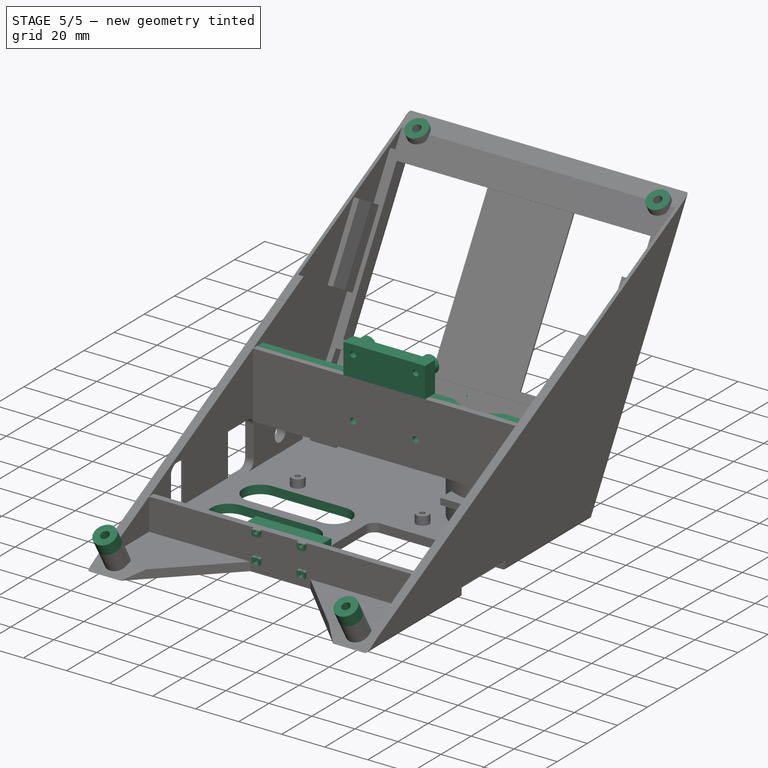
[diagram: stage 5 of 5 — iso view after this stage's code; geometry added in this stage tinted green]
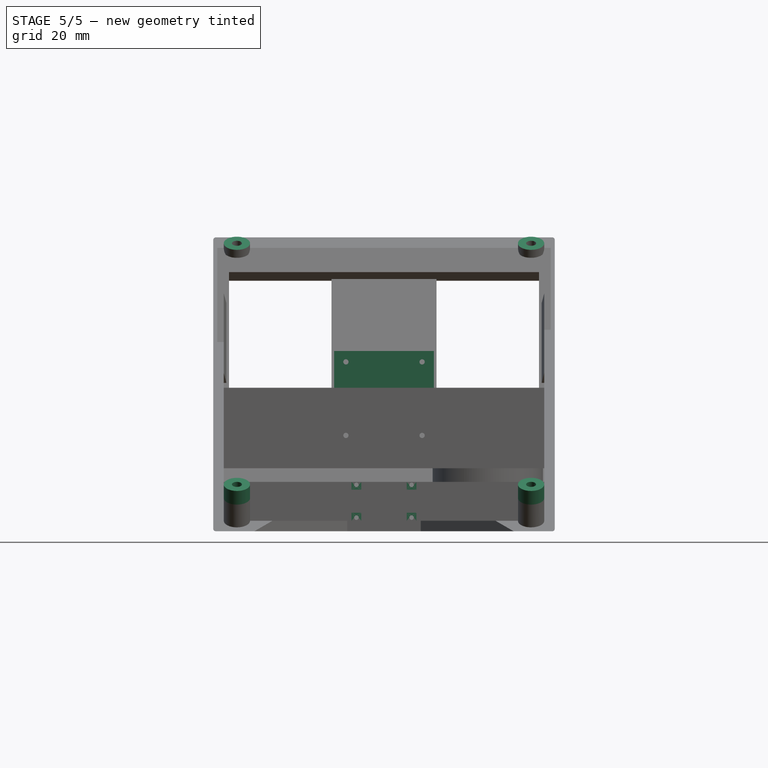
[diagram: stage 5 of 5 — front view after this stage's code; geometry added in this stage tinted green]
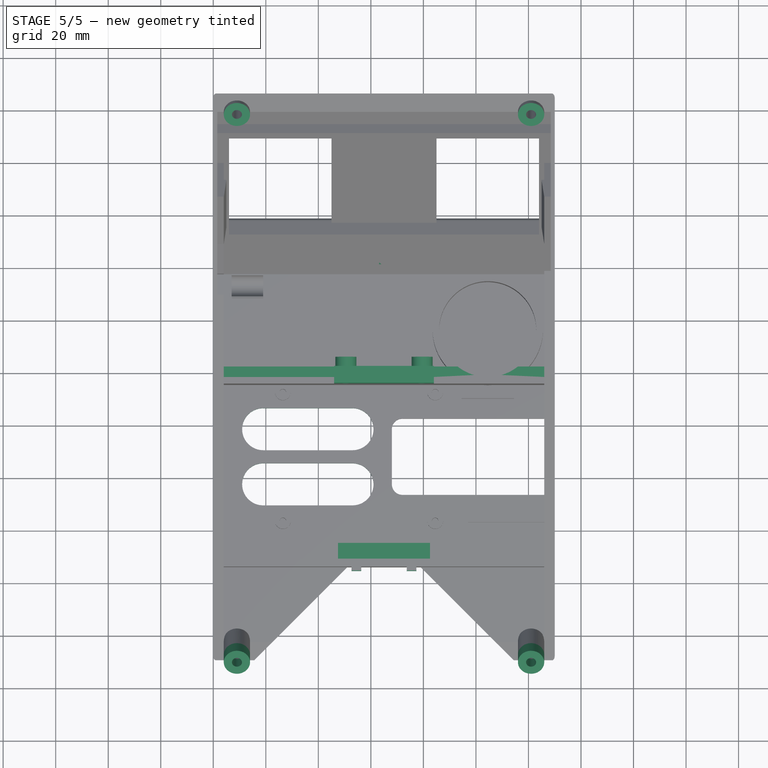
[diagram: stage 5 of 5 — top view after this stage's code; geometry added in this stage tinted green]
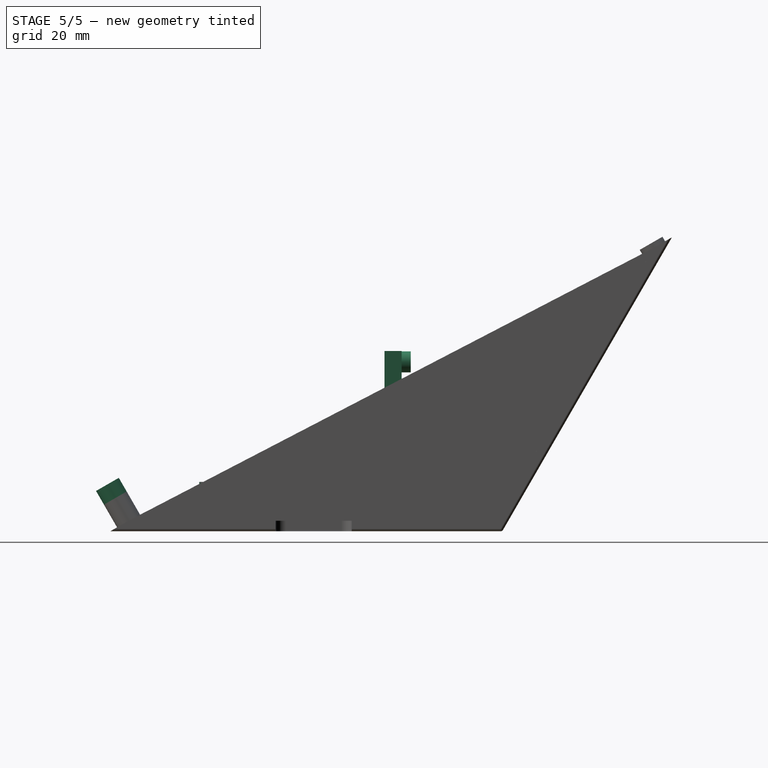
[diagram: stage 5 of 5 — right view after this stage's code; geometry added in this stage tinted green]
FEATURE [Sketcher::SketchObject] Sketch045
  ExternalGeometry = -> [Pad020]
  MapMode = 5
  Placement = pos=(0,0,54.6625) rot=(0,0,-1;1.5708rad)
  Support = -> [Pad020]
  sketch-geometry (12):
    g0: LineSegment [constr] StartX=44.8094 StartY=4 StartZ=0 EndX=42.3094 EndY=4 EndZ=0
    g1: LineSegment [constr] StartX=42.3094 StartY=4 StartZ=0 EndX=42.3094 EndY=46 EndZ=0
    g2: LineSegment [constr] StartX=42.3094 StartY=46 StartZ=0 EndX=44.8094 EndY=46 EndZ=0
    g3: LineSegment [constr] StartX=44.8094 StartY=46 StartZ=0 EndX=44.8094 EndY=4 EndZ=0
    g4: LineSegment [constr] StartX=42.3094 StartY=126 StartZ=0 EndX=44.8094 EndY=126 EndZ=0
    g5: LineSegment [constr] StartX=44.8094 StartY=126 StartZ=0 EndX=44.8094 EndY=84 EndZ=0
    g6: LineSegment [constr] StartX=44.8094 StartY=84 StartZ=0 EndX=42.3094 EndY=84 EndZ=0
    g7: LineSegment [constr] StartX=42.3094 StartY=84 StartZ=0 EndX=42.3094 EndY=126 EndZ=0
    g8: LineSegment StartX=42.3094 StartY=84 StartZ=0 EndX=44.8094 EndY=84 EndZ=0
    g9: LineSegment StartX=44.8094 StartY=84 StartZ=0 EndX=44.8094 EndY=46 EndZ=0
    g10: LineSegment StartX=44.8094 StartY=46 StartZ=0 EndX=42.3094 EndY=46 EndZ=0
    g11: LineSegment StartX=42.3094 StartY=46 StartZ=0 EndX=42.3094 EndY=84 EndZ=0
  constraints (32):
    c: Coincident(g0,g1)
    c: Coincident(g1,g2)
    c: Coincident(g2,g3)
    c: Coincident(g3,g0)
    c: Horizontal(g0)
    c: Horizontal(g2)
    c: Vertical(g1)
    c: Vertical(g3)
    c: Coincident(g0,g-3)
    c: PointOnObject(g1,g-4)
    c: Coincident(g4,g5)
    c: Coincident(g5,g6)
    c: Coincident(g6,g7)
    c: Coincident(g7,g4)
    c: Horizontal(g4)
    c: Horizontal(g6)
    c: Vertical(g5)
    c: Vertical(g7)
    c: Coincident(g4,g-4)
    c: PointOnObject(g5,g-3)
    c: Coincident(g8,g9)
    c: Coincident(g9,g10)
    c: Coincident(g10,g11)
    c: Coincident(g11,g8)
    c: Horizontal(g8)
    c: Horizontal(g10)
    c: Vertical(g9)
    c: Vertical(g11)
    c: Coincident(g8,g6)
    c: Coincident(g9,g2)
    c: DistanceY(g2,g5) = 38
    c: Equal(g1,g5)
FEATURE [PartDesign::Pad] Pad021
  Length = 14
  Length2 = 100
  Placement = pos=(0,0,0) rot=(0.57735,0.57735,0.57735;2.0944rad)
  Profile = -> Sketch045
  Type = 0
FEATURE [Sketcher::SketchObject] Sketch046
  ExternalGeometry = -> [Pad021]
  MapMode = 5
  Placement = pos=(0,-44.8094,0) rot=(0.57735,0.57735,-0.57735;2.0944rad)
  Support = -> [Pad021]
  sketch-geometry (24):
    g0: LineSegment [constr] StartX=-68.6625 StartY=84 StartZ=0 EndX=-64.5 EndY=84 EndZ=0
    g1: LineSegment [constr] StartX=-64.5 StartY=84 StartZ=0 EndX=-64.5 EndY=79.5 EndZ=0
    g2: LineSegment [constr] StartX=-64.5 StartY=79.5 StartZ=0 EndX=-68.6625 EndY=79.5 EndZ=0
    g3: LineSegment [constr] StartX=-68.6625 StartY=79.5 StartZ=0 EndX=-68.6625 EndY=84 EndZ=0
    g4: LineSegment [constr] StartX=-68.6625 StartY=46 StartZ=0 EndX=-64.5 EndY=46 EndZ=0
    g5: LineSegment [constr] StartX=-64.5 StartY=46 StartZ=0 EndX=-64.5 EndY=50.5 EndZ=0
    g6: LineSegment [constr] StartX=-64.5 StartY=50.5 StartZ=0 EndX=-68.6625 EndY=50.5 EndZ=0
    g7: LineSegment [constr] StartX=-68.6625 StartY=50.5 StartZ=0 EndX=-68.6625 EndY=46 EndZ=0
    g8: LineSegment [constr] StartX=-64.5 StartY=79.5 StartZ=0 EndX=-36.5 EndY=79.5 EndZ=0
    g9: LineSegment [constr] StartX=-36.5 StartY=79.5 StartZ=0 EndX=-36.5 EndY=50.5 EndZ=0
    g10: LineSegment [constr] StartX=-36.5 StartY=50.5 StartZ=0 EndX=-64.5 EndY=50.5 EndZ=0
    g11: LineSegment [constr] StartX=-64.5 StartY=50.5 StartZ=0 EndX=-64.5 EndY=79.5 EndZ=0
    g12: LineSegment [constr] StartX=-36.5 StartY=79.5 StartZ=0 EndX=-24 EndY=79.5 EndZ=0
    g13: LineSegment [constr] StartX=-24 StartY=79.5 StartZ=0 EndX=-24 EndY=50.5 EndZ=0
    g14: LineSegment [constr] StartX=-24 StartY=50.5 StartZ=0 EndX=-36.5 EndY=50.5 EndZ=0
    g15: LineSegment [constr] StartX=-36.5 StartY=50.5 StartZ=0 EndX=-36.5 EndY=79.5 EndZ=0
    g16: Circle CenterX=-36.5 CenterY=50.5 CenterZ=0 NormalX=0 NormalY=0 NormalZ=1 Radius=1.4
    g17: Circle CenterX=-36.5 CenterY=79.5 CenterZ=0 NormalX=0 NormalY=0 NormalZ=1 Radius=1.4
    g18: Circle CenterX=-64.5 CenterY=79.5 CenterZ=0 NormalX=0 NormalY=0 NormalZ=1 Radius=1.4
    g19: Circle CenterX=-64.5 CenterY=50.5 CenterZ=0 NormalX=0 NormalY=0 NormalZ=1 Radius=1.4
    g20: Circle CenterX=-64.5 CenterY=50.5 CenterZ=0 NormalX=0 NormalY=0 NormalZ=1 Radius=4
    g21: Circle CenterX=-64.5 CenterY=79.5 CenterZ=0 NormalX=0 NormalY=0 NormalZ=1 Radius=4
    g22: Circle CenterX=-36.5 CenterY=79.5 CenterZ=0 NormalX=0 NormalY=0 NormalZ=1 Radius=4
    g23: Circle CenterX=-36.5 CenterY=50.5 CenterZ=0 NormalX=0 NormalY=0 NormalZ=1 Radius=4
  constraints (59):
    c: Coincident(g0,g1)
    c: Coincident(g1,g2)
    c: Coincident(g2,g3)
    c: Coincident(g3,g0)
    c: Horizontal(g0)
    c: Horizontal(g2)
    c: Vertical(g1)
    c: Vertical(g3)
    c: Coincident(g0,g-4)
    c: Coincident(g4,g5)
    c: Coincident(g5,g6)
    c: Coincident(g6,g7)
    c: Coincident(g7,g4)
    c: Horizontal(g4)
    c: Horizontal(g6)
    c: Vertical(g5)
    c: Vertical(g7)
    c: Coincident(g4,g-5)
    c: Coincident(g8,g9)
    c: Coincident(g9,g10)
    c: Coincident(g10,g11)
    c: Coincident(g11,g8)
    c: Horizontal(g8)
    c: Horizontal(g10)
    c: Vertical(g9)
    c: Vertical(g11)
    c: Coincident(g8,g1)
    c: Coincident(g10,g5)
    c: Equal(g5,g1)
    c: DistanceY(g11,g11) = 29
    c: DistanceX(g8,g8) = 28
    c: Coincident(g12,g13)
    c: Coincident(g13,g14)
    c: Coincident(g14,g15)
    c: Coincident(g15,g12)
    c: Horizontal(g12)
    c: Horizontal(g14)
    c: Vertical(g13)
    c: Vertical(g15)
    c: Coincident(g12,g8)
    c: PointOnObject(g13,g-6)
    c: Coincident(g14,g9)
    c: Coincident(g16,g9)
    c: Coincident(g17,g8)
    c: Coincident(g18,g1)
    c: Coincident(g19,g5)
    c: Coincident(g20,g5)
    c: Coincident(g21,g1)
    c: Coincident(g22,g8)
    c: Coincident(g23,g9)
    c: Radius(g23) = 4
    c: Equal(g23,g20)
    c: Equal(g23,g21)
    c: Equal(g23,g22)
    c: Radius(g19) = 1.4
    c: Equal(g19,g18)
    c: Equal(g19,g17)
    c: Equal(g19,g16)
    c: DistanceX(g8,g12) = 12.5
FEATURE [PartDesign::Pad] Pad024
  Length = 10
  Length2 = 100
  Placement = pos=(0,0,0) rot=(0.57735,0.57735,0.57735;2.0944rad)
  Profile = -> Sketch046
  Reversed = true
  Type = 0
FEATURE [Sketcher::SketchObject] Sketch050
  ExternalGeometry = -> [Pad024]
  MapMode = 5
  Placement = pos=(0,-44.8094,0) rot=(0.57735,0.57735,-0.57735;2.0944rad)
  Support = -> [Pad024]
  sketch-geometry (4):
    g0: Circle CenterX=-36.5 CenterY=79.5 CenterZ=0 NormalX=0 NormalY=0 NormalZ=1 Radius=1.4
    g1: Circle CenterX=-64.5 CenterY=79.5 CenterZ=0 NormalX=0 NormalY=0 NormalZ=1 Radius=1.4
    g2: Circle CenterX=-36.5 CenterY=50.5 CenterZ=0 NormalX=0 NormalY=0 NormalZ=1 Radius=1.4
    g3: Circle CenterX=-64.5 CenterY=50.5 CenterZ=0 NormalX=0 NormalY=0 NormalZ=1 Radius=1.4
  constraints (8):
    c: Coincident(g3,g-4)
    c: Coincident(g2,g-5)
    c: Coincident(g1,g-3)
    c: Coincident(g0,g-6)
    c: Equal(g0,g-6)
    c: Equal(g1,g-3)
    c: Equal(g3,g-4)
    c: Equal(g2,g-5)
FEATURE [PartDesign::Pocket] Pocket023
  Length = 5
  Placement = pos=(0,0,0) rot=(0.57735,0.57735,0.57735;2.0944rad)
  Profile = -> Sketch050
  Type = 0
FEATURE [Sketcher::SketchObject] Sketch051
  ExternalGeometry = -> [Pocket023]
  MapMode = 5
  Placement = pos=(0,-113.84,0) rot=(0.57735,0.57735,-0.57735;2.0944rad)
  Support = -> [Pocket023]
  sketch-geometry (16):
    g0: LineSegment StartX=-18.793 StartY=77.35 StartZ=0 EndX=-15.843 EndY=77.35 EndZ=0
    g1: LineSegment StartX=-15.843 StartY=77.35 StartZ=0 EndX=-15.843 EndY=73.65 EndZ=0
    g2: LineSegment StartX=-15.843 StartY=73.65 StartZ=0 EndX=-18.793 EndY=73.65 EndZ=0
    g3: LineSegment StartX=-18.793 StartY=73.65 StartZ=0 EndX=-18.793 EndY=77.35 EndZ=0
    g4: LineSegment StartX=-4 StartY=77.35 StartZ=0 EndX=-7.04301 EndY=77.35 EndZ=0
    g5: LineSegment StartX=-7.04301 StartY=77.35 StartZ=0 EndX=-7.04301 EndY=73.65 EndZ=0
    g6: LineSegment StartX=-7.04301 StartY=73.65 StartZ=0 EndX=-4 EndY=73.65 EndZ=0
    g7: LineSegment StartX=-4 StartY=73.65 StartZ=0 EndX=-4 EndY=77.35 EndZ=0
    g8: LineSegment StartX=-4 StartY=52.65 StartZ=0 EndX=-7.04301 EndY=52.65 EndZ=0
    g9: LineSegment StartX=-7.04301 StartY=52.65 StartZ=0 EndX=-7.04301 EndY=56.35 EndZ=0
    g10: LineSegment StartX=-7.04301 StartY=56.35 StartZ=0 EndX=-4 EndY=56.35 EndZ=0
    g11: LineSegment StartX=-4 StartY=56.35 StartZ=0 EndX=-4 EndY=52.65 EndZ=0
    g12: LineSegment StartX=-18.793 StartY=52.65 StartZ=0 EndX=-15.843 EndY=52.65 EndZ=0
    g13: LineSegment StartX=-15.843 StartY=52.65 StartZ=0 EndX=-15.843 EndY=56.35 EndZ=0
    g14: LineSegment StartX=-15.843 StartY=56.35 StartZ=0 EndX=-18.793 EndY=56.35 EndZ=0
    g15: LineSegment StartX=-18.793 StartY=56.35 StartZ=0 EndX=-18.793 EndY=52.65 EndZ=0
  constraints (48):
    c: Coincident(g0,g1)
    c: Coincident(g1,g2)
    c: Coincident(g2,g3)
    c: Coincident(g3,g0)
    c: Horizontal(g0)
    c: Horizontal(g2)
    c: Vertical(g1)
    c: Vertical(g3)
    c: PointOnObject(g0,g-11)
    c: PointOnObject(g-6,g1)
    c: Tangent(g2,g-6)
    c: Tangent(g0,g-5)
    c: Coincident(g4,g5)
    c: Coincident(g5,g6)
    c: Coincident(g6,g7)
    c: Coincident(g7,g4)
    c: Horizontal(g4)
    c: Horizontal(g6)
    c: Vertical(g5)
    c: Vertical(g7)
    c: PointOnObject(g4,g-12)
    c: Coincident(g8,g9)
    c: Coincident(g9,g10)
    c: Coincident(g10,g11)
    c: Coincident(g11,g8)
    c: Horizontal(g8)
    c: Horizontal(g10)
    c: Vertical(g9)
    c: Vertical(g11)
    c: PointOnObject(g8,g-13)
    c: Coincident(g12,g13)
    c: Coincident(g13,g14)
    c: Coincident(g14,g15)
    c: Coincident(g15,g12)
    c: Horizontal(g12)
    c: Horizontal(g14)
    c: Vertical(g13)
    c: Vertical(g15)
    c: PointOnObject(g12,g-14)
    c: Tangent(g4,g-7)
    c: Tangent(g6,g-7)
    c: Tangent(g5,g-7)
    c: Tangent(g8,g-10)
    c: Tangent(g10,g-10)
    c: Tangent(g9,g-10)
    c: Tangent(g12,g-8)
    c: Tangent(g14,g-9)
    c: Tangent(g-9,g13) = -1.5708
FEATURE [PartDesign::Pad] Pad025
  Length = 1.5
  Length2 = 100
  Placement = pos=(0,0,0) rot=(0.57735,0.57735,0.57735;2.0944rad)
  Profile = -> Sketch051
  Type = 0
FEATURE [Sketcher::SketchObject] Sketch052
  ExternalGeometry = -> [Pad025]
  MapMode = 5
  Placement = pos=(0,-42.3094,73.282) rot=(0.250563,0.250563,-0.935113;1.63783rad)
  Support = -> [Pad025]
  sketch-geometry (4):
    g0: Circle CenterX=121.244 CenterY=121 CenterZ=0 NormalX=0 NormalY=0 NormalZ=1 Radius=1.9
    g1: Circle CenterX=121.244 CenterY=121 CenterZ=0 NormalX=0 NormalY=0 NormalZ=1 Radius=5
    g2: Circle CenterX=121.244 CenterY=9 CenterZ=0 NormalX=0 NormalY=0 NormalZ=1 Radius=1.9
    g3: Circle CenterX=121.244 CenterY=9 CenterZ=0 NormalX=0 NormalY=0 NormalZ=1 Radius=5
  constraints (8):
    c: Coincident(g3,g-6)
    c: Coincident(g2,g3)
    c: Coincident(g0,g-4)
    c: Coincident(g1,g0)
    c: Equal(g0,g-3)
    c: Equal(g1,g-4)
    c: Equal(g2,g-5)
    c: Equal(g3,g-6)
FEATURE [PartDesign::Pad] Pad026
  Length = 6
  Length2 = 100
  Placement = pos=(0,0,0) rot=(0.57735,0.57735,0.57735;2.0944rad)
  Profile = -> Sketch052
  Type = 0
FEATURE [Sketcher::SketchObject] Sketch053
  ExternalGeometry = -> [Pad026]
  MapMode = 5
  Placement = pos=(0,-37.3094,64.6218) rot=(0.250563,0.250563,-0.935113;1.63783rad)
  Support = -> [Pad026]
  sketch-geometry (4):
    g0: LineSegment StartX=-108.923 StartY=126 StartZ=0 EndX=-98.923 EndY=126 EndZ=0
    g1: LineSegment StartX=-98.923 StartY=126 StartZ=0 EndX=-98.923 EndY=4 EndZ=0
    g2: LineSegment StartX=-98.923 StartY=4 StartZ=0 EndX=-108.923 EndY=4 EndZ=0
    g3: LineSegment StartX=-108.923 StartY=4 StartZ=0 EndX=-108.923 EndY=126 EndZ=0
  constraints (12):
    c: Coincident(g0,g1)
    c: Coincident(g1,g2)
    c: Coincident(g2,g3)
    c: Coincident(g3,g0)
    c: Horizontal(g0)
    c: Horizontal(g2)
    c: Vertical(g1)
    c: Vertical(g3)
    c: Tangent(g2,g-4)
    c: Tangent(g0,g-3)
    c: Tangent(g3,g-3)
    c: Tangent(g1,g-3)
FEATURE [PartDesign::Pocket] Pocket024
  Length = 8
  Placement = pos=(0,0,0) rot=(0.57735,0.57735,0.57735;2.0944rad)
  Profile = -> Sketch053
  Type = 0
FEATURE [Sketcher::SketchObject] Sketch054
  ExternalGeometry = -> [Pocket024]
  MapMode = 5
  Placement = pos=(0,-115.34,0) rot=(0.57735,0.57735,-0.57735;2.0944rad)
  Support = -> [Pocket024]
  sketch-geometry (4):
    g0: LineSegment StartX=-4 StartY=77.35 StartZ=0 EndX=-18.793 EndY=77.35 EndZ=0
    g1: LineSegment StartX=-18.793 StartY=77.35 StartZ=0 EndX=-18.793 EndY=52.65 EndZ=0
    g2: LineSegment StartX=-18.793 StartY=52.65 StartZ=0 EndX=-4 EndY=52.65 EndZ=0
    g3: LineSegment StartX=-4 StartY=52.65 StartZ=0 EndX=-4 EndY=77.35 EndZ=0
  constraints (10):
    c: Coincident(g0,g1)
    c: Coincident(g1,g2)
    c: Coincident(g2,g3)
    c: Coincident(g3,g0)
    c: Horizontal(g0)
    c: Horizontal(g2)
    c: Vertical(g1)
    c: Vertical(g3)
    c: Coincident(g0,g-4)
    c: Coincident(g1,g-3)
FEATURE [PartDesign::Pocket] Pocket025
  Length = 5
  Placement = pos=(0,0,0) rot=(0.57735,0.57735,0.57735;2.0944rad)
  Profile = -> Sketch054
  Reversed = true
  Type = 0
FEATURE [Sketcher::SketchObject] Sketch055
  ExternalGeometry = -> [Pocket025]
  MapMode = 5
  Placement = pos=(0,-110.84,0) rot=(0.57735,0.57735,0.57735;4.18879rad)
  Support = -> [Pocket025]
  sketch-geometry (12):
    g0: LineSegment [constr] StartX=18.793 StartY=126 StartZ=0 EndX=4 EndY=126 EndZ=0
    g1: LineSegment [constr] StartX=4 StartY=126 StartZ=0 EndX=4 EndY=82.5 EndZ=0
    g2: LineSegment [constr] StartX=4 StartY=82.5 StartZ=0 EndX=18.793 EndY=82.5 EndZ=0
    g3: LineSegment [constr] StartX=18.793 StartY=82.5 StartZ=0 EndX=18.793 EndY=126 EndZ=0
    g4: LineSegment [constr] StartX=18.793 StartY=4 StartZ=0 EndX=1.32618 EndY=4 EndZ=0
    g5: LineSegment [constr] StartX=1.32618 StartY=4 StartZ=0 EndX=1.32618 EndY=47.5 EndZ=0
    g6: LineSegment [constr] StartX=1.32618 StartY=47.5 StartZ=0 EndX=18.793 EndY=47.5 EndZ=0
    g7: LineSegment [constr] StartX=18.793 StartY=47.5 StartZ=0 EndX=18.793 EndY=4 EndZ=0
    g8: LineSegment StartX=18.793 StartY=47.5 StartZ=0 EndX=4 EndY=47.5 EndZ=0
    g9: LineSegment StartX=4 StartY=47.5 StartZ=0 EndX=4 EndY=82.5 EndZ=0
    g10: LineSegment StartX=4 StartY=82.5 StartZ=0 EndX=18.793 EndY=82.5 EndZ=0
    g11: LineSegment StartX=18.793 StartY=82.5 StartZ=0 EndX=18.793 EndY=47.5 EndZ=0
  constraints (31):
    c: Coincident(g0,g1)
    c: Coincident(g1,g2)
    c: Coincident(g2,g3)
    c: Coincident(g3,g0)
    c: Horizontal(g0)
    c: Horizontal(g2)
    c: Vertical(g1)
    c: Vertical(g3)
    c: Coincident(g0,g-3)
    c: PointOnObject(g1,g-4)
    c: Coincident(g4,g5)
    c: Coincident(g5,g6)
    c: Coincident(g6,g7)
    c: Coincident(g7,g4)
    c: Horizontal(g4)
    c: Horizontal(g6)
    c: Vertical(g5)
    c: Vertical(g7)
    c: Coincident(g4,g-3)
    c: Coincident(g8,g9)
    c: Coincident(g9,g10)
    c: Coincident(g10,g11)
    c: Coincident(g11,g8)
    c: Horizontal(g8)
    c: Horizontal(g10)
    c: Vertical(g9)
    c: Vertical(g11)
    c: Coincident(g8,g6)
    c: Coincident(g9,g1)
    c: Equal(g1,g7)
    c: DistanceY(g6,g2) = 35
FEATURE [PartDesign::Pad] Pad027
  Length = 6
  Length2 = 100
  Placement = pos=(0,0,0) rot=(0.57735,0.57735,0.57735;2.0944rad)
  Profile = -> Sketch055
  Type = 0
FEATURE [Sketcher::SketchObject] Sketch056
  ExternalGeometry = -> [Pad027]
  MapMode = 5
  Placement = pos=(0,-115.34,0) rot=(0.57735,0.57735,-0.57735;2.0944rad)
  Support = -> [Pad027]
  sketch-geometry (4):
    g0: Circle CenterX=-17.693 CenterY=75.5 CenterZ=0 NormalX=0 NormalY=0 NormalZ=1 Radius=0.85
    g1: Circle CenterX=-5.19301 CenterY=75.5 CenterZ=0 NormalX=0 NormalY=0 NormalZ=1 Radius=0.85
    g2: Circle CenterX=-5.19301 CenterY=54.5 CenterZ=0 NormalX=0 NormalY=0 NormalZ=1 Radius=0.85
    g3: Circle CenterX=-17.693 CenterY=54.5 CenterZ=0 NormalX=0 NormalY=0 NormalZ=1 Radius=0.85
  constraints (8):
    c: Coincident(g0,g-3)
    c: Coincident(g3,g-4)
    c: Coincident(g2,g-5)
    c: Coincident(g1,g-6)
    c: Radius(g1) = 0.85
    c: Equal(g1,g0)
    c: Equal(g1,g3)
    c: Equal(g1,g2)
FEATURE [PartDesign::Pocket] Pocket026
  Length = 15
  Placement = pos=(0,0,0) rot=(0.57735,0.57735,0.57735;2.0944rad)
  Profile = -> Sketch056
  Type = 0
FEATURE [Sketcher::SketchObject] Sketch057
  ExternalGeometry = -> [Pocket026]
  MapMode = 5
  Placement = pos=(0,-42.3094,0) rot=(0.57735,0.57735,0.57735;4.18879rad)
  Support = -> [Pocket026]
  sketch-geometry (12):
    g0: LineSegment StartX=24 StartY=4 StartZ=0 EndX=54.6625 EndY=4 EndZ=0
    g1: LineSegment StartX=54.6625 StartY=126 StartZ=0 EndX=24 EndY=126 EndZ=0
    g2: LineSegment StartX=24 StartY=126 StartZ=0 EndX=24 EndY=4 EndZ=0
    g3: LineSegment StartX=54.6625 StartY=126 StartZ=0 EndX=54.6625 EndY=84 EndZ=0
    g4: LineSegment StartX=54.6625 StartY=84 StartZ=0 EndX=68.6625 EndY=84 EndZ=0
    g5: LineSegment StartX=68.6625 StartY=84 StartZ=0 EndX=68.6625 EndY=46 EndZ=0
    g6: LineSegment StartX=68.6625 StartY=46 StartZ=0 EndX=54.6625 EndY=46 EndZ=0
    g7: LineSegment StartX=54.6625 StartY=46 StartZ=0 EndX=54.6625 EndY=4 EndZ=0
    g8: Circle CenterX=64.5 CenterY=79.5 CenterZ=0 NormalX=0 NormalY=0 NormalZ=1 Radius=1
    g9: Circle CenterX=64.5 CenterY=50.5 CenterZ=0 NormalX=0 NormalY=0 NormalZ=1 Radius=1
    g10: Circle CenterX=36.5 CenterY=50.5 CenterZ=0 NormalX=0 NormalY=0 NormalZ=1 Radius=1
    g11: Circle CenterX=36.5 CenterY=79.5 CenterZ=0 NormalX=0 NormalY=0 NormalZ=1 Radius=1
  constraints (28):
    c: Coincident(g1,g2)
    c: Coincident(g2,g0)
    c: Horizontal(g0)
    c: Horizontal(g1)
    c: Vertical(g2)
    c: Coincident(g0,g-3)
    c: Coincident(g3,g1)
    c: Coincident(g4,g3)
    c: Coincident(g4,g-6)
    c: Horizontal(g4)
    c: Coincident(g5,g4)
    c: Coincident(g5,g-6)
    c: Coincident(g6,g-5)
    c: Horizontal(g6)
    c: Coincident(g7,g6)
    c: Coincident(g7,g0)
    c: Vertical(g7)
    c: Coincident(g3,g-4)
    c: Coincident(g1,g-4)
    c: Coincident(g5,g6)
    c: Coincident(g8,g-10)
    c: Coincident(g9,g-9)
    c: Coincident(g10,g-8)
    c: Coincident(g11,g-7)
    c: Radius(g10) = 1
    c: Equal(g10,g11)
    c: Equal(g10,g8)
    c: Equal(g10,g9)
FEATURE [PartDesign::Pad] Pad028
  Length = 4
  Length2 = 100
  Placement = pos=(0,0,0) rot=(0.57735,0.57735,0.57735;2.0944rad)
  Profile = -> Sketch057
  Type = 0
FEATURE [Sketcher::SketchObject] Sketch058
  ExternalGeometry = -> [Pad028]
  MapMode = 5
  Placement = pos=(0,0,24) rot=(0,0,-1;1.5708rad)
  Support = -> [Pad028]
  sketch-geometry (1):
    g0: Circle CenterX=23.8094 CenterY=104.5 CenterZ=0 NormalX=0 NormalY=0 NormalZ=1 Radius=18.5
  constraints (2):
    c: Coincident(g0,g-3)
    c: Equal(g0,g-3)
FEATURE [PartDesign::Pocket] Pocket027
  Length = 5
  Placement = pos=(0,0,0) rot=(0.57735,0.57735,0.57735;2.0944rad)
  Profile = -> Sketch058
  Reversed = true
  Type = 1
FEATURE [Sketcher::SketchObject] Sketch059
  ExternalGeometry = -> [Pocket027]
  MapMode = 5
  Placement = pos=(0,0,0) rot=(0.654654,0.654654,0.377964;3.86433rad)
  Support = -> [Pocket027]
  sketch-geometry (4):
    g0: LineSegment StartX=36.3094 StartY=25.6 StartZ=0 EndX=6.9094 EndY=25.6 EndZ=0
    g1: LineSegment StartX=6.9094 StartY=25.6 StartZ=0 EndX=6.9094 EndY=104.4 EndZ=0
    g2: LineSegment StartX=6.9094 StartY=104.4 StartZ=0 EndX=36.3094 EndY=104.4 EndZ=0
    g3: LineSegment StartX=36.3094 StartY=104.4 StartZ=0 EndX=36.3094 EndY=25.6 EndZ=0
  constraints (12):
    c: Coincident(g0,g1)
    c: Coincident(g1,g2)
    c: Coincident(g2,g3)
    c: Coincident(g3,g0)
    c: Horizontal(g0)
    c: Horizontal(g2)
    c: Vertical(g1)
    c: Vertical(g3)
    c: PointOnObject(g0,g-5)
    c: Tangent(g-4,g2)
    c: Tangent(g0,g-3)
    c: Tangent(g1,g-4)
FEATURE [PartDesign::Pad] Pad029
  Length = 4
  Length2 = 100
  Placement = pos=(0,0,0) rot=(0.57735,0.57735,0.57735;2.0944rad)
  Profile = -> Sketch059
  Reversed = true
  Type = 0
FEATURE [Sketcher::SketchObject] Sketch060
  ExternalGeometry = -> [Pad029]
  MapMode = 5
  Placement = pos=(0,0,4) rot=(0,0,-1;1.5708rad)
  Support = -> [Pad029]
  sketch-geometry (20):
    g0: LineSegment [constr] StartX=82.3094 StartY=4 StartZ=0 EndX=61.3094 EndY=4 EndZ=0
    g1: LineSegment [constr] StartX=61.3094 StartY=4 StartZ=0 EndX=61.3094 EndY=19 EndZ=0
    g2: LineSegment [constr] StartX=61.3094 StartY=19 StartZ=0 EndX=82.3094 EndY=19 EndZ=0
    g3: LineSegment [constr] StartX=82.3094 StartY=19 StartZ=0 EndX=82.3094 EndY=4 EndZ=0
    g4: LineSegment [constr] StartX=61.3094 StartY=19 StartZ=0 EndX=82.3094 EndY=19 EndZ=0
    g5: LineSegment [constr] StartX=82.3094 StartY=19 StartZ=0 EndX=82.3094 EndY=53 EndZ=0
    g6: LineSegment [constr] StartX=82.3094 StartY=53 StartZ=0 EndX=61.3094 EndY=53 EndZ=0
    g7: LineSegment [constr] StartX=61.3094 StartY=53 StartZ=0 EndX=61.3094 EndY=19 EndZ=0
    g8: LineSegment [constr] StartX=82.3094 StartY=53 StartZ=0 EndX=61.3094 EndY=53 EndZ=0
    g9: LineSegment [constr] StartX=61.3094 StartY=53 StartZ=0 EndX=61.3094 EndY=68 EndZ=0
    g10: LineSegment [constr] StartX=61.3094 StartY=68 StartZ=0 EndX=82.3094 EndY=68 EndZ=0
    g11: LineSegment [constr] StartX=82.3094 StartY=68 StartZ=0 EndX=82.3094 EndY=53 EndZ=0
    g12: ArcOfCircle CenterX=61.3094 CenterY=19 CenterZ=0 NormalX=0 NormalY=0 NormalZ=1 Radius=8 StartAngle=3.14159 EndAngle=6.28319
    g13: ArcOfCircle CenterX=82.3094 CenterY=19 CenterZ=0 NormalX=0 NormalY=0 NormalZ=1 Radius=8 StartAngle=3.1416 EndAngle=6.28318
    g14: ArcOfCircle CenterX=82.3094 CenterY=53 CenterZ=0 NormalX=0 NormalY=0 NormalZ=1 Radius=8 StartAngle=9.3489e-08 EndAngle=3.14159
    g15: ArcOfCircle CenterX=61.3094 CenterY=53 CenterZ=0 NormalX=0 NormalY=0 NormalZ=1 Radius=8 StartAngle=1.07449e-07 EndAngle=3.14159
    g16: LineSegment StartX=53.3094 StartY=19 StartZ=0 EndX=53.3094 EndY=53 EndZ=0
    g17: LineSegment StartX=69.3094 StartY=19 StartZ=0 EndX=69.3094 EndY=53 EndZ=0
    g18: LineSegment StartX=74.3094 StartY=19 StartZ=0 EndX=74.3094 EndY=53 EndZ=0
    g19: LineSegment StartX=90.3094 StartY=53 StartZ=0 EndX=90.3094 EndY=19 EndZ=0
  constraints (58):
    c: Coincident(g0,g1)
    c: Coincident(g1,g2)
    c: Coincident(g2,g3)
    c: Coincident(g3,g0)
    c: Horizontal(g0)
    c: Horizontal(g2)
    c: Vertical(g1)
    c: Vertical(g3)
    c: PointOnObject(g0,g-4)
    c: Coincident(g4,g5)
    c: Coincident(g5,g6)
    c: Coincident(g6,g7)
    c: Coincident(g7,g4)
    c: Horizontal(g4)
    c: Horizontal(g6)
    c: Vertical(g5)
    c: Vertical(g7)
    c: Coincident(g4,g1)
    c: Coincident(g8,g9)
    c: Coincident(g9,g10)
    c: Coincident(g10,g11)
    c: Coincident(g11,g8)
    c: Horizontal(g8)
    c: Horizontal(g10)
    c: Vertical(g9)
    c: Vertical(g11)
    c: Coincident(g8,g5)
    c: Coincident(g9,g-3)
    c: Coincident(g8,g6)
    c: Coincident(g2,g4)
    c: DistanceY(g11,g11) = 15
    c: Equal(g11,g3)
    c: Coincident(g10,g-3)
    c: Coincident(g13,g2)
    c: Coincident(g14,g5)
    c: Coincident(g15,g6)
    c: Coincident(g16,g12)
    c: Coincident(g16,g15)
    c: Coincident(g17,g12)
    c: Vertical(g17)
    c: Coincident(g18,g13)
    c: Coincident(g18,g14)
    c: Coincident(g19,g14)
    c: Coincident(g19,g13)
    c: Vertical(g16)
    c: Vertical(g18)
    c: Vertical(g19)
    c: Tangent(g14,g19)
    c: Tangent(g19,g13)
    c: Tangent(g14,g18)
    c: Tangent(g17,g15)
    c: Coincident(g15,g17)
    c: Tangent(g12,g17)
    c: Tangent(g12,g16)
    c: Tangent(g15,g16)
    c: Radius(g15) = 8
    c: Equal(g15,g14)
    c: Coincident(g12,g1)
FEATURE [PartDesign::Pocket] Pocket028
  Length = 5
  Placement = pos=(0,0,0) rot=(0.57735,0.57735,0.57735;2.0944rad)
  Profile = -> Sketch060
  Type = 0
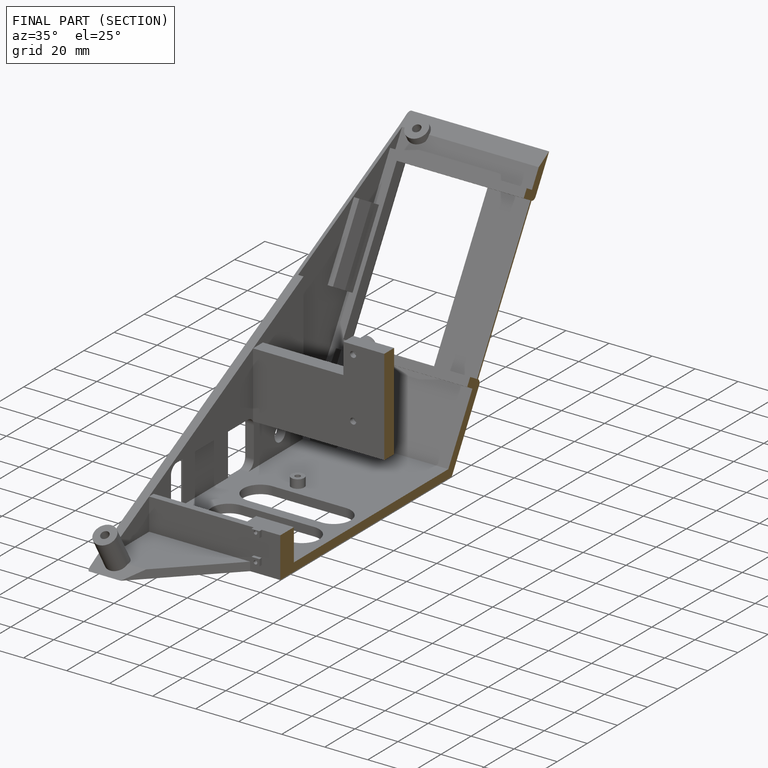
[diagram: finished part — half-section view (interior)]
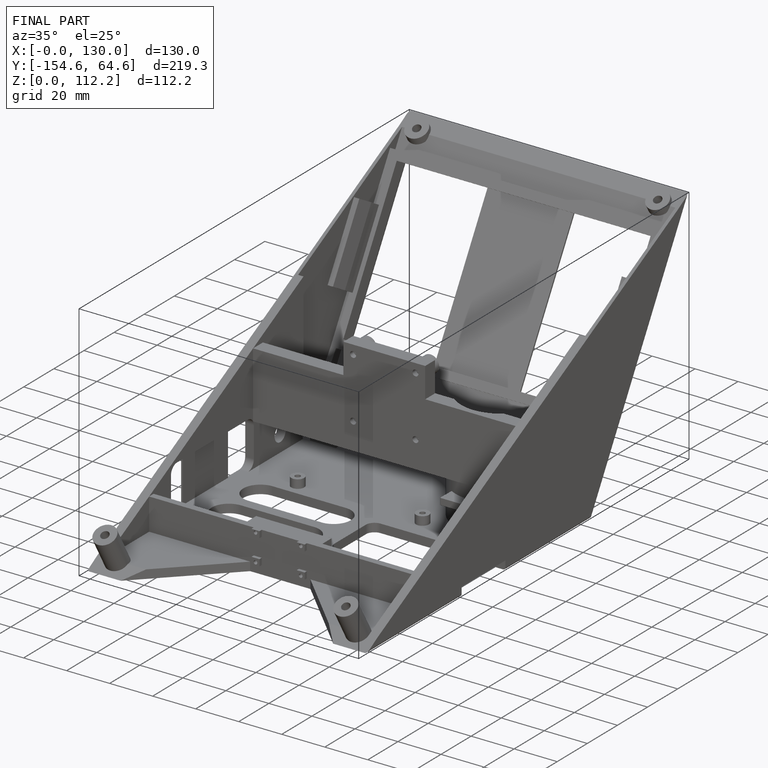
[diagram: finished part — iso view with bounding-box wireframe]
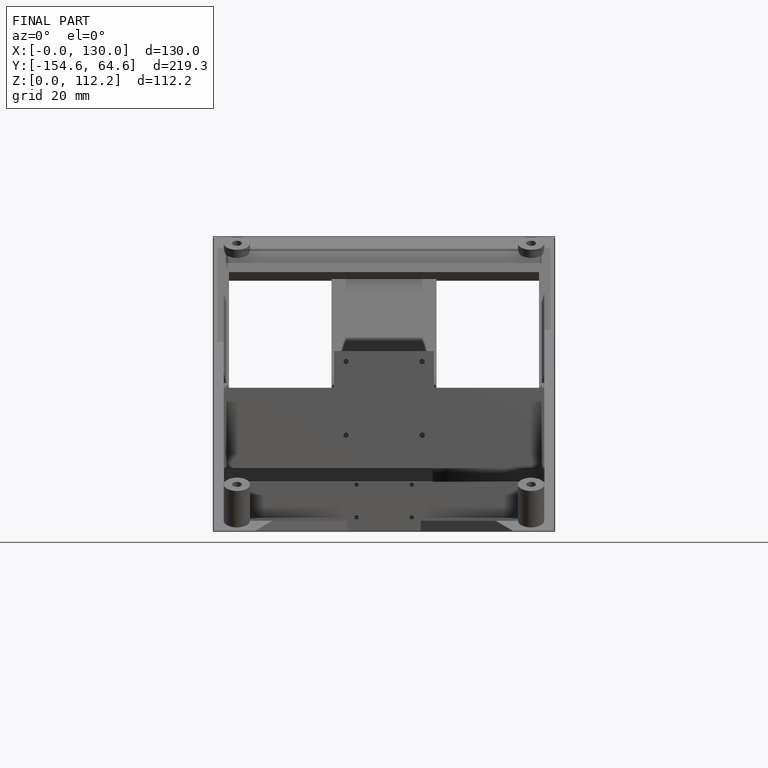
[diagram: finished part — front view with bounding-box wireframe]
